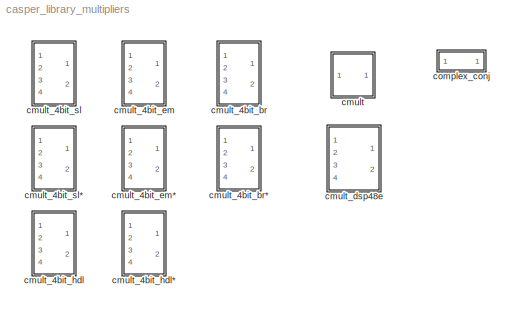
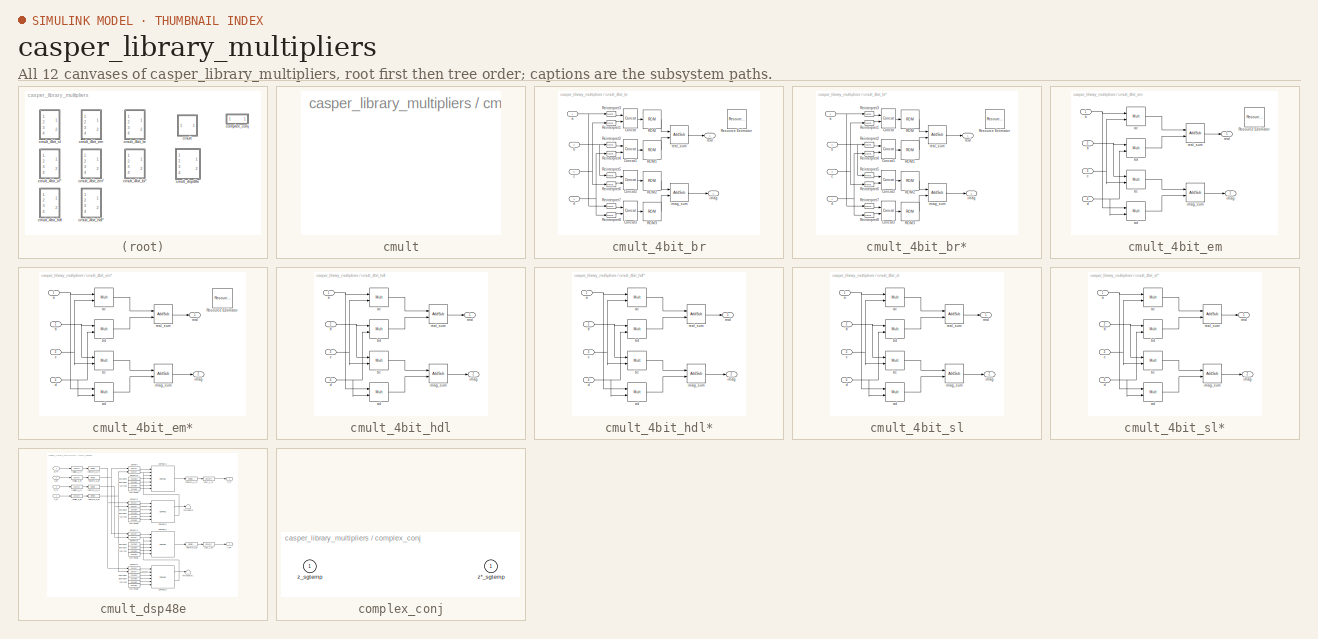
[diagram: thumbnail index - all 12 canvases of the model, root first then tree order]
MODEL casper_library_multipliers
KIND library
BLOCK [SubSystem] cmult
  FunctionWithSeparateData = off
  MaskCallbackString = |||||||||||||||
  MaskDescription = Multiplies two complex numbers using 4 multipliers and 2 adders.\nConjugation is optional.
  MaskEnableString = on,on,on,on,on,on,on,on,on,on,on,on,on,on,on,on
  MaskHideContents = off
  MaskIconFrame = on
  MaskIconOpaque = on
  MaskIconRotate = none
  MaskIconUnits = autoscale
  MaskInitialization = cmult_init(gcb, ...\n    'n_bits_a',n_bits_a, ...\n    'bin_pt_a',bin_pt_a, ...\n    'n_bits_b',n_bits_b, ...\n    'bin_pt_b',bin_pt_b, ...\n    'n_bits_ab',n_bits_ab, ...\n    'bin_pt_ab',bin_pt_ab, ...\n    'quantization',quantization, ...\n    'overflow', overflow, ...\n    'in_latency', in_latency, ...\n    'mult_latency', mult_latency, ...\n    'add_latency', add_latency, ...\n    'conv_laten...<+191ch>
  MaskPromptString = Number of Bits 'a'|Binary Point 'a'|Number of Bits 'b'|Binary Point 'b'|Number of Bits 'ab'|Binary Point 'ab'|Quantization|Overflow|Input latency|Multiplier Latency|Adder Latency|Convert latency|Conjugate|asynchronous operation|enable pipeline|Multiplier implementation
  MaskSelfModifiable = on
  MaskStyleString = edit,edit,edit,edit,edit,edit,popup(Truncate|Round  (unbiased: +/- Inf)|Round  (unbiased: Even Values)),popup(Wrap|Saturate|Flag as error),edit,edit,edit,edit,checkbox,checkbox,checkbox,popup(behavioral HDL|standard core|embedded multiplier core)
  MaskTabNameString = basic,basic,basic,basic,basic,basic,basic,basic,latency,latency,latency,latency,basic,basic,basic,implementation
  MaskToolTipString = on,on,on,on,on,on,on,on,on,on,on,on,on,on,on,on
  MaskTunableValueString = on,on,on,on,on,on,on,on,on,on,on,on,on,on,on,on
  MaskType = cmult
  MaskValueString = 0|17|18|17|37|14|Truncate|Wrap|0|3|1|1|off|off|on|behavioral HDL
  MaskVariables = n_bits_a=@1;bin_pt_a=@2;n_bits_b=@3;bin_pt_b=@4;n_bits_ab=@5;bin_pt_ab=@6;quantization=&7;overflow=&8;in_latency=@9;mult_latency=@10;add_latency=@11;conv_latency=@12;conjugated=&13;async=&14;pipelined_enable=&15;multiplier_implementation=&16;
  MaskVisibilityString = on,on,on,on,on,on,on,on,on,on,on,on,on,on,on,on
  MinAlgLoopOccurrences = off
  Opaque = off
  Ports = []
  PropExecContextOutsideSubsystem = off
  RTWSystemCode = Auto
  UserData = DataTag0
  UserDataPersistent = on
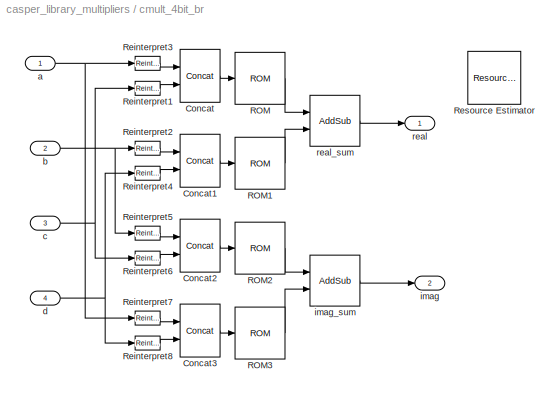
BLOCK [SubSystem] cmult_4bit_br
  FunctionWithSeparateData = off
  MaskCallbackString = |
  MaskDescription = Perform a complex multiplication (a+bi)(c-di)=(ac-bd)+(ad+bc)i. Implements the logic in Block RAM.
  MaskEnableString = on,on
  MaskHelp = eval('xlWeb(''http://casper.berkeley.edu/wiki/Cmult_4bit_br'')')
  MaskHideContents = off
  MaskIconFrame = on
  MaskIconOpaque = on
  MaskIconRotate = none
  MaskIconUnits = autoscale
  MaskPromptString = Mult Latency|Add Latency
  MaskStyleString = edit,edit
  MaskToolTipString = on,on
  MaskTunableValueString = on,on
  MaskType = cmult_4bit_br
  MaskValueString = 1|0
  MaskVariables = mult_latency=@1;add_latency=@2;
  MaskVisibilityString = on,on
  MinAlgLoopOccurrences = off
  Opaque = off
  Ports = [4, 2]
  PropExecContextOutsideSubsystem = off
  RTWSystemCode = Auto
BLOCK [SubSystem] cmult_4bit_br*
  FunctionWithSeparateData = off
  MaskCallbackString = |
  MaskDescription = Perform a conjugating complex multiplication (a+bi)(c-di)=(ac+bd)+(bc-ad)i. Implements the logic in Block RAM.
  MaskEnableString = on,on
  MaskHelp = eval('xlWeb(''http://casper.berkeley.edu/wiki/Cmult_4bit_br_'')')
  MaskHideContents = off
  MaskIconFrame = on
  MaskIconOpaque = on
  MaskIconRotate = none
  MaskIconUnits = autoscale
  MaskPromptString = Mult Latency|Add Latency
  MaskStyleString = edit,edit
  MaskToolTipString = on,on
  MaskTunableValueString = on,on
  MaskType = cmult_4bit_br*
  MaskValueString = 1|0
  MaskVariables = mult_latency=@1;add_latency=@2;
  MaskVisibilityString = on,on
  MinAlgLoopOccurrences = off
  Opaque = off
  Ports = [4, 2]
  PropExecContextOutsideSubsystem = off
  RTWSystemCode = Auto
BLOCK [Reference] cmult_4bit_br*/Concat  REF=xbsIndex_r4/Concat
  Ports = [2, 1]
  SourceBlock = xbsIndex_r4/Concat
  SourceType = Xilinx Bus Concatenator Block
  block_type = concat
  block_version = 9.1.01
  dbl_ovrd = off
  has_advanced_control = 0
  infoedit = Concatenates two or more inputs.  Output will be cast to an unsigned value with the binary point at zero.
  num_inputs = 2
  sg_icon_stat = 40,53,2,1,white,blue,0,16398980,right,,[ ],[ ]
  sg_mask_display = fprintf('','COMMENT: begin icon graphics');\npatch([0 40 40 0 0 ],[0 0 53 53 0 ],[0.77 0.82 0.91 ]);\nplot([0 40 40 0 0 ],[0 0 53 53 0 ]);\npatch([8.875 16.1 21.1 26.1 31.1 21.1 13.875 8.875 ],[31.55 31.55 36.55 31.55 36.55 36.55 36.55 31.55 ],[1 1 1 ]);\npatch([13.875 21.1 16.1 8.875 13.875 ],[26.55 26.55 31.55 31.55 26.55 ],[0.931 0.946 0.973 ]);\npatch([8.875 16.1 21.1 13.875 8.875 ],[21.55 21....<+422ch>  <repeated x8 — deduplicated; at blocks: Concat, Concat1, Concat2, Concat3>
  sggui_pos = -1,-1,-1,-1
BLOCK [Reference] cmult_4bit_br*/Concat1  REF=xbsIndex_r4/Concat
  Ports = [2, 1]
  SourceBlock = xbsIndex_r4/Concat
  SourceType = Xilinx Bus Concatenator Block
  block_type = concat
  block_version = 9.1.01
  dbl_ovrd = off
  has_advanced_control = 0
  infoedit = Concatenates two or more inputs.  Output will be cast to an unsigned value with the binary point at zero.
  num_inputs = 2
  sg_icon_stat = 40,53,2,1,white,blue,0,16398980,right,,[ ],[ ]
  sggui_pos = -1,-1,-1,-1
BLOCK [Reference] cmult_4bit_br*/Concat2  REF=xbsIndex_r4/Concat
  Ports = [2, 1]
  SourceBlock = xbsIndex_r4/Concat
  SourceType = Xilinx Bus Concatenator Block
  block_type = concat
  block_version = 9.1.01
  dbl_ovrd = off
  has_advanced_control = 0
  infoedit = Concatenates two or more inputs.  Output will be cast to an unsigned value with the binary point at zero.
  num_inputs = 2
  sg_icon_stat = 40,53,2,1,white,blue,0,16398980,right,,[ ],[ ]
  sggui_pos = -1,-1,-1,-1
BLOCK [Reference] cmult_4bit_br*/Concat3  REF=xbsIndex_r4/Concat
  Ports = [2, 1]
  SourceBlock = xbsIndex_r4/Concat
  SourceType = Xilinx Bus Concatenator Block
  block_type = concat
  block_version = 9.1.01
  dbl_ovrd = off
  has_advanced_control = 0
  infoedit = Concatenates two or more inputs.  Output will be cast to an unsigned value with the binary point at zero.
  num_inputs = 2
  sg_icon_stat = 40,53,2,1,white,blue,0,16398980,right,,[ ],[ ]
  sggui_pos = -1,-1,-1,-1
BLOCK [Reference] cmult_4bit_br*/ROM  REF=xbsIndex_r4/ROM
  Ports = [1, 1]
  SourceBlock = xbsIndex_r4/ROM
  SourceType = Xilinx Single Port Read-Only Memory Block
  arith_type = Signed  (2's comp)
  bin_pt = 6
  block_type = sprom
  block_version = 9.1.01
  dbl_ovrd = off
  depth = 256
  distributed_mem = Block RAM
  en = off
  exp_width = 8
  frac_width = 24
  gui_display_data_type = Fixed-point
  has_advanced_control = 0
  initVector = transpose(transpose([0:7 -8:-1]) * [0:7 -8:-1]) / 64
  init_reg = 0
  latency = mult_latency
  n_bits = 8
  optimize = Area
  preci_type = Single
  rst = off
  sg_icon_stat = 50,52,1,1,white,blue,0,bbc23d60,right,,[ ],[ ]
  sg_mask_display = fprintf('','COMMENT: begin icon graphics');\npatch([0 60 60 0 0 ],[0 0 56 56 0 ],[0.77 0.82 0.91 ]);\nplot([0 60 60 0 0 ],[0 0 56 56 0 ]);\npatch([12.2 23.76 31.76 39.76 47.76 31.76 20.2 12.2 ],[36.88 36.88 44.88 36.88 44.88 44.88 44.88 36.88 ],[1 1 1 ]);\npatch([20.2 31.76 23.76 12.2 20.2 ],[28.88 28.88 36.88 36.88 28.88 ],[0.931 0.946 0.973 ]);\npatch([12.2 23.76 31.76 20.2 12.2 ],[20.88 20.88 2...<+364ch>  <repeated x8 — deduplicated; at blocks: ROM, ROM1, ROM2, ROM3>
  sggui_pos = -1,-1,-1,-1
  use_rpm = off
  xl_area = [0 0 1 0 0 0 0]
  xl_use_area = off
BLOCK [Reference] cmult_4bit_br*/ROM1  REF=xbsIndex_r4/ROM
  Ports = [1, 1]
  SourceBlock = xbsIndex_r4/ROM
  SourceType = Xilinx Single Port Read-Only Memory Block
  arith_type = Signed  (2's comp)
  bin_pt = 6
  block_type = sprom
  block_version = 9.1.01
  dbl_ovrd = off
  depth = 256
  distributed_mem = Block RAM
  en = off
  exp_width = 8
  frac_width = 24
  gui_display_data_type = Fixed-point
  has_advanced_control = 0
  initVector = transpose([0:7 -8:-1]) * [0:7 -8:-1] / 64
  init_reg = 0
  latency = mult_latency
  n_bits = 8
  optimize = Area
  preci_type = Single
  rst = off
  sg_icon_stat = 50,52,1,1,white,blue,0,bbc23d60,right,,[ ],[ ]
  sggui_pos = -1,-1,-1,-1
  use_rpm = off
  xl_area = [0 0 1 0 0 0 0]
  xl_use_area = off
BLOCK [Reference] cmult_4bit_br*/ROM2  REF=xbsIndex_r4/ROM
  Ports = [1, 1]
  SourceBlock = xbsIndex_r4/ROM
  SourceType = Xilinx Single Port Read-Only Memory Block
  arith_type = Signed  (2's comp)
  bin_pt = 6
  block_type = sprom
  block_version = 9.1.01
  dbl_ovrd = off
  depth = 256
  distributed_mem = Block RAM
  en = off
  exp_width = 8
  frac_width = 24
  gui_display_data_type = Fixed-point
  has_advanced_control = 0
  initVector = transpose([0:7 -8:-1]) * [0:7 -8:-1] / 64
  init_reg = 0
  latency = mult_latency
  n_bits = 8
  optimize = Area
  preci_type = Single
  rst = off
  sg_icon_stat = 50,52,1,1,white,blue,0,bbc23d60,right,,[ ],[ ]
  sggui_pos = -1,-1,-1,-1
  use_rpm = off
  xl_area = [0 0 1 0 0 0 0]
  xl_use_area = off
BLOCK [Reference] cmult_4bit_br*/ROM3  REF=xbsIndex_r4/ROM
  Ports = [1, 1]
  SourceBlock = xbsIndex_r4/ROM
  SourceType = Xilinx Single Port Read-Only Memory Block
  arith_type = Signed  (2's comp)
  bin_pt = 6
  block_type = sprom
  block_version = 9.1.01
  dbl_ovrd = off
  depth = 256
  distributed_mem = Block RAM
  en = off
  exp_width = 8
  frac_width = 24
  gui_display_data_type = Fixed-point
  has_advanced_control = 0
  initVector = transpose([0:7 -8:-1]) * [0:7 -8:-1] / 64
  init_reg = 0
  latency = mult_latency
  n_bits = 8
  optimize = Area
  preci_type = Single
  rst = off
  sg_icon_stat = 50,52,1,1,white,blue,0,bbc23d60,right,,[ ],[ ]
  sggui_pos = -1,-1,-1,-1
  use_rpm = off
  xl_area = [0 0 1 0 0 0 0]
  xl_use_area = off
BLOCK [Reference] cmult_4bit_br*/Reinterpret1  REF=xbsIndex_r4/Reinterpret
  Ports = [1, 1]
  SourceBlock = xbsIndex_r4/Reinterpret
  SourceType = Xilinx Type Reinterpreter Block
  arith_type = Unsigned
  bin_pt = 0
  block_type = reinterpret
  block_version = 9.1.01
  force_arith_type = on
  force_bin_pt = on
  has_advanced_control = 0
  infoedit = Changes signal type without altering the binary representation.   You can changed the signal between signed and unsigned, and relocate the binary point.<P><P>Hardware notes: In hardware this block costs nothing.<P><P>Example:  Suppose the input is 6 bits wide, signed, with 2 fractional bits, and the output is forced to unsigned with 0 fractional bits.  Then an input of -2.0 (1110.00 in binary 2's ...<+55ch>  <repeated x16 — deduplicated; at blocks: Reinterpret1, Reinterpret2, Reinterpret3, Reinterpret4, Reinterpret5, Reinterpret6, Reinterpret7, Reinterpret8>
  sg_icon_stat = 25,14,1,1,white,blue,0,6b04d0b0,right,,[ ],[ ]
  sg_mask_display = fprintf('','COMMENT: begin icon graphics');\npatch([0 25 25 0 0 ],[0 0 14 14 0 ],[0.77 0.82 0.91 ]);\nplot([0 25 25 0 0 ],[0 0 14 14 0 ]);\npatch([7.55 10.44 12.44 14.44 16.44 12.44 9.55 7.55 ],[9.22 9.22 11.22 9.22 11.22 11.22 11.22 9.22 ],[1 1 1 ]);\npatch([9.55 12.44 10.44 7.55 9.55 ],[7.22 7.22 9.22 9.22 7.22 ],[0.931 0.946 0.973 ]);\npatch([7.55 10.44 12.44 9.55 7.55 ],[5.22 5.22 7.22 7.22 5....<+289ch>  <repeated x16 — deduplicated; at blocks: Reinterpret1, Reinterpret2, Reinterpret3, Reinterpret4, Reinterpret5, Reinterpret6, Reinterpret7, Reinterpret8>
  sggui_pos = -1,-1,-1,-1
BLOCK [Reference] cmult_4bit_br*/Reinterpret2  REF=xbsIndex_r4/Reinterpret
  Ports = [1, 1]
  SourceBlock = xbsIndex_r4/Reinterpret
  SourceType = Xilinx Type Reinterpreter Block
  arith_type = Unsigned
  bin_pt = 0
  block_type = reinterpret
  block_version = 9.1.01
  force_arith_type = on
  force_bin_pt = on
  has_advanced_control = 0
  sg_icon_stat = 25,14,1,1,white,blue,0,6b04d0b0,right,,[ ],[ ]
  sggui_pos = -1,-1,-1,-1
BLOCK [Reference] cmult_4bit_br*/Reinterpret3  REF=xbsIndex_r4/Reinterpret
  Ports = [1, 1]
  SourceBlock = xbsIndex_r4/Reinterpret
  SourceType = Xilinx Type Reinterpreter Block
  arith_type = Unsigned
  bin_pt = 0
  block_type = reinterpret
  block_version = 9.1.01
  force_arith_type = on
  force_bin_pt = on
  has_advanced_control = 0
  sg_icon_stat = 25,14,1,1,white,blue,0,6b04d0b0,right,,[ ],[ ]
  sggui_pos = -1,-1,-1,-1
BLOCK [Reference] cmult_4bit_br*/Reinterpret4  REF=xbsIndex_r4/Reinterpret
  Ports = [1, 1]
  SourceBlock = xbsIndex_r4/Reinterpret
  SourceType = Xilinx Type Reinterpreter Block
  arith_type = Unsigned
  bin_pt = 0
  block_type = reinterpret
  block_version = 9.1.01
  force_arith_type = on
  force_bin_pt = on
  has_advanced_control = 0
  sg_icon_stat = 25,14,1,1,white,blue,0,6b04d0b0,right,,[ ],[ ]
  sggui_pos = -1,-1,-1,-1
BLOCK [Reference] cmult_4bit_br*/Reinterpret5  REF=xbsIndex_r4/Reinterpret
  Ports = [1, 1]
  SourceBlock = xbsIndex_r4/Reinterpret
  SourceType = Xilinx Type Reinterpreter Block
  arith_type = Unsigned
  bin_pt = 0
  block_type = reinterpret
  block_version = 9.1.01
  force_arith_type = on
  force_bin_pt = on
  has_advanced_control = 0
  sg_icon_stat = 25,14,1,1,white,blue,0,6b04d0b0,right,,[ ],[ ]
  sggui_pos = -1,-1,-1,-1
BLOCK [Reference] cmult_4bit_br*/Reinterpret6  REF=xbsIndex_r4/Reinterpret
  Ports = [1, 1]
  SourceBlock = xbsIndex_r4/Reinterpret
  SourceType = Xilinx Type Reinterpreter Block
  arith_type = Unsigned
  bin_pt = 0
  block_type = reinterpret
  block_version = 9.1.01
  force_arith_type = on
  force_bin_pt = on
  has_advanced_control = 0
  sg_icon_stat = 25,14,1,1,white,blue,0,6b04d0b0,right,,[ ],[ ]
  sggui_pos = -1,-1,-1,-1
BLOCK [Reference] cmult_4bit_br*/Reinterpret7  REF=xbsIndex_r4/Reinterpret
  Ports = [1, 1]
  SourceBlock = xbsIndex_r4/Reinterpret
  SourceType = Xilinx Type Reinterpreter Block
  arith_type = Unsigned
  bin_pt = 0
  block_type = reinterpret
  block_version = 9.1.01
  force_arith_type = on
  force_bin_pt = on
  has_advanced_control = 0
  sg_icon_stat = 25,14,1,1,white,blue,0,6b04d0b0,right,,[ ],[ ]
  sggui_pos = -1,-1,-1,-1
BLOCK [Reference] cmult_4bit_br*/Reinterpret8  REF=xbsIndex_r4/Reinterpret
  Ports = [1, 1]
  SourceBlock = xbsIndex_r4/Reinterpret
  SourceType = Xilinx Type Reinterpreter Block
  arith_type = Unsigned
  bin_pt = 0
  block_type = reinterpret
  block_version = 9.1.01
  force_arith_type = on
  force_bin_pt = on
  has_advanced_control = 0
  sg_icon_stat = 25,14,1,1,white,blue,0,6b04d0b0,right,,[ ],[ ]
  sggui_pos = -1,-1,-1,-1
BLOCK [Reference] cmult_4bit_br*/Resource Estimator  REF=xbsIndex_r4/Resource Estimator
  AttributesFormatString = Resource\\nEstimator
  BRAMs = 4
  EBMs = 0
  FFs = 18
  IOBs = 0
  LUTs = 16
  Ports = []
  Slices = 10
  SourceBlock = xbsIndex_r4/Resource Estimator
  SourceType = Xilinx Resource Estimator Block
  TBUFs = 0
  Tag = resEstTag
  block_type = resource_estimator
  block_version = 9.1.01
  est_options = Estimate
  has_advanced_control = 0
  mrp_directory = <path>
  sg_icon_stat = 53,53,-1,-1,blue,white,0,0,right
  sg_mask_display = fprintf('','COMMENT: begin icon graphics');\npatch([0 53 53 0 ],[0 0 53 53 ],[0.98 0.96 0.92]);\npatch([13 4 16 4 13 27 31 35 50 38 27 19 31 19 27 38 50 35 31 27 13 ],[6 15 27 39 48 48 44 48 48 36 47 39 27 15 7 18 6 6 10 6 6 ],[0.77 0.82 0.91]);\nplot([0 0 53 53 0 ],[0 53 53 0 0 ]);\nfprintf('','COMMENT: end icon graphics');\nfprintf('','COMMENT: begin icon text');\nfprintf('','COMMENT: end icon t...<+8ch>  <repeated x4 — deduplicated; at blocks: Resource Estimator>
  sggui_pos = -1,-1,-1,-1
  simulink_period = 1
  xl_estimator_area = [10 18 4 16 0 0 0]
  xl_use_estimator_area = off
BLOCK [Inport] cmult_4bit_br*/a
  IconDisplay = Port number
BLOCK [Inport] cmult_4bit_br*/b
  IconDisplay = Port number
  Port = 2
BLOCK [Inport] cmult_4bit_br*/c
  IconDisplay = Port number
  Port = 3
BLOCK [Inport] cmult_4bit_br*/d
  IconDisplay = Port number
  Port = 4
BLOCK [Outport] cmult_4bit_br*/imag
  IconDisplay = Port number
  Port = 2
BLOCK [Reference] cmult_4bit_br*/imag_sum  REF=xbsIndex_r4/AddSub
  Ports = [2, 1]
  SourceBlock = xbsIndex_r4/AddSub
  SourceType = Xilinx Adder/Subtracter Block
  arith_type = Unsigned
  bin_pt = 2
  block_type = addsub
  block_version = 9.1.01
  dbl_ovrd = off
  en = off
  has_advanced_control = 0
  hw_selection = Fabric
  latency = add_latency
  mode = Subtraction
  n_bits = 8
  overflow = Wrap
  pipelined = off
  precision = Full
  quantization = Truncate
  sg_icon_stat = 50,51,2,1,white,blue,0,32e1f85f,right,,[ ],[ ]
  sg_mask_display = fprintf('','COMMENT: begin icon graphics');\npatch([0 60 60 0 0 ],[0 0 58 58 0 ],[0.77 0.82 0.91 ]);\nplot([0 60 60 0 0 ],[0 0 58 58 0 ]);\npatch([12.2 23.76 31.76 39.76 47.76 31.76 20.2 12.2 ],[37.88 37.88 45.88 37.88 45.88 45.88 45.88 37.88 ],[1 1 1 ]);\npatch([20.2 31.76 23.76 12.2 20.2 ],[29.88 29.88 37.88 37.88 29.88 ],[0.931 0.946 0.973 ]);\npatch([12.2 23.76 31.76 20.2 12.2 ],[21.88 21.88 2...<+424ch>  <repeated x16 — deduplicated; at blocks: imag_sum, real_sum>
  sggui_pos = -1,-1,-1,-1
  use_behavioral_HDL = on
  use_carryin = off
  use_carryout = off
  use_rpm = on
  xl_area = [5 9 0 8 0 0 0]
  xl_use_area = off
BLOCK [Outport] cmult_4bit_br*/real
  IconDisplay = Port number
BLOCK [Reference] cmult_4bit_br*/real_sum  REF=xbsIndex_r4/AddSub
  Ports = [2, 1]
  SourceBlock = xbsIndex_r4/AddSub
  SourceType = Xilinx Adder/Subtracter Block
  arith_type = Unsigned
  bin_pt = 2
  block_type = addsub
  block_version = 9.1.01
  dbl_ovrd = off
  en = off
  has_advanced_control = 0
  hw_selection = Fabric
  latency = add_latency
  mode = Addition
  n_bits = 8
  overflow = Wrap
  pipelined = off
  precision = Full
  quantization = Truncate
  sg_icon_stat = 50,51,2,1,white,blue,0,e139daf6,right,,[ ],[ ]
  sggui_pos = -1,-1,-1,-1
  use_behavioral_HDL = on
  use_carryin = off
  use_carryout = off
  use_rpm = on
  xl_area = [5 9 0 8 0 0 0]
  xl_use_area = off
BLOCK [Reference] cmult_4bit_br/Concat  REF=xbsIndex_r4/Concat
  Ports = [2, 1]
  SourceBlock = xbsIndex_r4/Concat
  SourceType = Xilinx Bus Concatenator Block
  block_type = concat
  block_version = 9.1.01
  dbl_ovrd = off
  has_advanced_control = 0
  infoedit = Concatenates two or more inputs.  Output will be cast to an unsigned value with the binary point at zero.
  num_inputs = 2
  sg_icon_stat = 40,53,2,1,white,blue,0,16398980,right,,[ ],[ ]
  sggui_pos = -1,-1,-1,-1
BLOCK [Reference] cmult_4bit_br/Concat1  REF=xbsIndex_r4/Concat
  Ports = [2, 1]
  SourceBlock = xbsIndex_r4/Concat
  SourceType = Xilinx Bus Concatenator Block
  block_type = concat
  block_version = 9.1.01
  dbl_ovrd = off
  has_advanced_control = 0
  infoedit = Concatenates two or more inputs.  Output will be cast to an unsigned value with the binary point at zero.
  num_inputs = 2
  sg_icon_stat = 40,53,2,1,white,blue,0,16398980,right,,[ ],[ ]
  sggui_pos = -1,-1,-1,-1
BLOCK [Reference] cmult_4bit_br/Concat2  REF=xbsIndex_r4/Concat
  Ports = [2, 1]
  SourceBlock = xbsIndex_r4/Concat
  SourceType = Xilinx Bus Concatenator Block
  block_type = concat
  block_version = 9.1.01
  dbl_ovrd = off
  has_advanced_control = 0
  infoedit = Concatenates two or more inputs.  Output will be cast to an unsigned value with the binary point at zero.
  num_inputs = 2
  sg_icon_stat = 40,53,2,1,white,blue,0,16398980,right,,[ ],[ ]
  sggui_pos = -1,-1,-1,-1
BLOCK [Reference] cmult_4bit_br/Concat3  REF=xbsIndex_r4/Concat
  Ports = [2, 1]
  SourceBlock = xbsIndex_r4/Concat
  SourceType = Xilinx Bus Concatenator Block
  block_type = concat
  block_version = 9.1.01
  dbl_ovrd = off
  has_advanced_control = 0
  infoedit = Concatenates two or more inputs.  Output will be cast to an unsigned value with the binary point at zero.
  num_inputs = 2
  sg_icon_stat = 40,53,2,1,white,blue,0,16398980,right,,[ ],[ ]
  sggui_pos = -1,-1,-1,-1
BLOCK [Reference] cmult_4bit_br/ROM  REF=xbsIndex_r4/ROM
  Ports = [1, 1]
  SourceBlock = xbsIndex_r4/ROM
  SourceType = Xilinx Single Port Read-Only Memory Block
  arith_type = Signed  (2's comp)
  bin_pt = 6
  block_type = sprom
  block_version = 9.1.01
  dbl_ovrd = off
  depth = 256
  distributed_mem = Block RAM
  en = off
  exp_width = 8
  frac_width = 24
  gui_display_data_type = Fixed-point
  has_advanced_control = 0
  initVector = transpose(transpose([0:7 -8:-1]) * [0:7 -8:-1]) / 64
  init_reg = 0
  latency = mult_latency
  n_bits = 8
  optimize = Area
  preci_type = Single
  rst = off
  sg_icon_stat = 50,52,1,1,white,blue,0,bbc23d60,right,,[ ],[ ]
  sggui_pos = -1,-1,-1,-1
  use_rpm = off
  xl_area = [0 0 1 0 0 0 0]
  xl_use_area = off
BLOCK [Reference] cmult_4bit_br/ROM1  REF=xbsIndex_r4/ROM
  Ports = [1, 1]
  SourceBlock = xbsIndex_r4/ROM
  SourceType = Xilinx Single Port Read-Only Memory Block
  arith_type = Signed  (2's comp)
  bin_pt = 6
  block_type = sprom
  block_version = 9.1.01
  dbl_ovrd = off
  depth = 256
  distributed_mem = Block RAM
  en = off
  exp_width = 8
  frac_width = 24
  gui_display_data_type = Fixed-point
  has_advanced_control = 0
  initVector = transpose([0:7 -8:-1]) * [0:7 -8:-1] / 64
  init_reg = 0
  latency = mult_latency
  n_bits = 8
  optimize = Area
  preci_type = Single
  rst = off
  sg_icon_stat = 50,52,1,1,white,blue,0,bbc23d60,right,,[ ],[ ]
  sggui_pos = -1,-1,-1,-1
  use_rpm = off
  xl_area = [0 0 1 0 0 0 0]
  xl_use_area = off
BLOCK [Reference] cmult_4bit_br/ROM2  REF=xbsIndex_r4/ROM
  Ports = [1, 1]
  SourceBlock = xbsIndex_r4/ROM
  SourceType = Xilinx Single Port Read-Only Memory Block
  arith_type = Signed  (2's comp)
  bin_pt = 6
  block_type = sprom
  block_version = 9.1.01
  dbl_ovrd = off
  depth = 256
  distributed_mem = Block RAM
  en = off
  exp_width = 8
  frac_width = 24
  gui_display_data_type = Fixed-point
  has_advanced_control = 0
  initVector = transpose([0:7 -8:-1]) * [0:7 -8:-1] / 64
  init_reg = 0
  latency = mult_latency
  n_bits = 8
  optimize = Area
  preci_type = Single
  rst = off
  sg_icon_stat = 50,52,1,1,white,blue,0,bbc23d60,right,,[ ],[ ]
  sggui_pos = -1,-1,-1,-1
  use_rpm = off
  xl_area = [0 0 1 0 0 0 0]
  xl_use_area = off
BLOCK [Reference] cmult_4bit_br/ROM3  REF=xbsIndex_r4/ROM
  Ports = [1, 1]
  SourceBlock = xbsIndex_r4/ROM
  SourceType = Xilinx Single Port Read-Only Memory Block
  arith_type = Signed  (2's comp)
  bin_pt = 6
  block_type = sprom
  block_version = 9.1.01
  dbl_ovrd = off
  depth = 256
  distributed_mem = Block RAM
  en = off
  exp_width = 8
  frac_width = 24
  gui_display_data_type = Fixed-point
  has_advanced_control = 0
  initVector = transpose([0:7 -8:-1]) * [0:7 -8:-1] / 64
  init_reg = 0
  latency = mult_latency
  n_bits = 8
  optimize = Area
  preci_type = Single
  rst = off
  sg_icon_stat = 50,52,1,1,white,blue,0,bbc23d60,right,,[ ],[ ]
  sggui_pos = -1,-1,-1,-1
  use_rpm = off
  xl_area = [0 0 1 0 0 0 0]
  xl_use_area = off
BLOCK [Reference] cmult_4bit_br/Reinterpret1  REF=xbsIndex_r4/Reinterpret
  Ports = [1, 1]
  SourceBlock = xbsIndex_r4/Reinterpret
  SourceType = Xilinx Type Reinterpreter Block
  arith_type = Unsigned
  bin_pt = 0
  block_type = reinterpret
  block_version = 9.1.01
  force_arith_type = on
  force_bin_pt = on
  has_advanced_control = 0
  sg_icon_stat = 25,14,1,1,white,blue,0,6b04d0b0,right,,[ ],[ ]
  sggui_pos = -1,-1,-1,-1
BLOCK [Reference] cmult_4bit_br/Reinterpret2  REF=xbsIndex_r4/Reinterpret
  Ports = [1, 1]
  SourceBlock = xbsIndex_r4/Reinterpret
  SourceType = Xilinx Type Reinterpreter Block
  arith_type = Unsigned
  bin_pt = 0
  block_type = reinterpret
  block_version = 9.1.01
  force_arith_type = on
  force_bin_pt = on
  has_advanced_control = 0
  sg_icon_stat = 25,14,1,1,white,blue,0,6b04d0b0,right,,[ ],[ ]
  sggui_pos = -1,-1,-1,-1
BLOCK [Reference] cmult_4bit_br/Reinterpret3  REF=xbsIndex_r4/Reinterpret
  Ports = [1, 1]
  SourceBlock = xbsIndex_r4/Reinterpret
  SourceType = Xilinx Type Reinterpreter Block
  arith_type = Unsigned
  bin_pt = 0
  block_type = reinterpret
  block_version = 9.1.01
  force_arith_type = on
  force_bin_pt = on
  has_advanced_control = 0
  sg_icon_stat = 25,14,1,1,white,blue,0,6b04d0b0,right,,[ ],[ ]
  sggui_pos = -1,-1,-1,-1
BLOCK [Reference] cmult_4bit_br/Reinterpret4  REF=xbsIndex_r4/Reinterpret
  Ports = [1, 1]
  SourceBlock = xbsIndex_r4/Reinterpret
  SourceType = Xilinx Type Reinterpreter Block
  arith_type = Unsigned
  bin_pt = 0
  block_type = reinterpret
  block_version = 9.1.01
  force_arith_type = on
  force_bin_pt = on
  has_advanced_control = 0
  sg_icon_stat = 25,14,1,1,white,blue,0,6b04d0b0,right,,[ ],[ ]
  sggui_pos = -1,-1,-1,-1
BLOCK [Reference] cmult_4bit_br/Reinterpret5  REF=xbsIndex_r4/Reinterpret
  Ports = [1, 1]
  SourceBlock = xbsIndex_r4/Reinterpret
  SourceType = Xilinx Type Reinterpreter Block
  arith_type = Unsigned
  bin_pt = 0
  block_type = reinterpret
  block_version = 9.1.01
  force_arith_type = on
  force_bin_pt = on
  has_advanced_control = 0
  sg_icon_stat = 25,14,1,1,white,blue,0,6b04d0b0,right,,[ ],[ ]
  sggui_pos = -1,-1,-1,-1
BLOCK [Reference] cmult_4bit_br/Reinterpret6  REF=xbsIndex_r4/Reinterpret
  Ports = [1, 1]
  SourceBlock = xbsIndex_r4/Reinterpret
  SourceType = Xilinx Type Reinterpreter Block
  arith_type = Unsigned
  bin_pt = 0
  block_type = reinterpret
  block_version = 9.1.01
  force_arith_type = on
  force_bin_pt = on
  has_advanced_control = 0
  sg_icon_stat = 25,14,1,1,white,blue,0,6b04d0b0,right,,[ ],[ ]
  sggui_pos = -1,-1,-1,-1
BLOCK [Reference] cmult_4bit_br/Reinterpret7  REF=xbsIndex_r4/Reinterpret
  Ports = [1, 1]
  SourceBlock = xbsIndex_r4/Reinterpret
  SourceType = Xilinx Type Reinterpreter Block
  arith_type = Unsigned
  bin_pt = 0
  block_type = reinterpret
  block_version = 9.1.01
  force_arith_type = on
  force_bin_pt = on
  has_advanced_control = 0
  sg_icon_stat = 25,14,1,1,white,blue,0,6b04d0b0,right,,[ ],[ ]
  sggui_pos = -1,-1,-1,-1
BLOCK [Reference] cmult_4bit_br/Reinterpret8  REF=xbsIndex_r4/Reinterpret
  Ports = [1, 1]
  SourceBlock = xbsIndex_r4/Reinterpret
  SourceType = Xilinx Type Reinterpreter Block
  arith_type = Unsigned
  bin_pt = 0
  block_type = reinterpret
  block_version = 9.1.01
  force_arith_type = on
  force_bin_pt = on
  has_advanced_control = 0
  sg_icon_stat = 25,14,1,1,white,blue,0,6b04d0b0,right,,[ ],[ ]
  sggui_pos = -1,-1,-1,-1
BLOCK [Reference] cmult_4bit_br/Resource Estimator  REF=xbsIndex_r4/Resource Estimator
  AttributesFormatString = Resource\\nEstimator
  BRAMs = 4
  EBMs = 0
  FFs = 18
  IOBs = 0
  LUTs = 16
  Ports = []
  Slices = 10
  SourceBlock = xbsIndex_r4/Resource Estimator
  SourceType = Xilinx Resource Estimator Block
  TBUFs = 0
  Tag = resEstTag
  block_type = resource_estimator
  block_version = 9.1.01
  est_options = Estimate
  has_advanced_control = 0
  mrp_directory = <path>
  sg_icon_stat = 53,53,-1,-1,blue,white,0,0,right
  sggui_pos = -1,-1,-1,-1
  simulink_period = 1
  xl_estimator_area = [10 18 4 16 0 0 0]
  xl_use_estimator_area = off
BLOCK [Inport] cmult_4bit_br/a
  IconDisplay = Port number
BLOCK [Inport] cmult_4bit_br/b
  IconDisplay = Port number
  Port = 2
BLOCK [Inport] cmult_4bit_br/c
  IconDisplay = Port number
  Port = 3
BLOCK [Inport] cmult_4bit_br/d
  IconDisplay = Port number
  Port = 4
BLOCK [Outport] cmult_4bit_br/imag
  IconDisplay = Port number
  Port = 2
BLOCK [Reference] cmult_4bit_br/imag_sum  REF=xbsIndex_r4/AddSub
  Ports = [2, 1]
  SourceBlock = xbsIndex_r4/AddSub
  SourceType = Xilinx Adder/Subtracter Block
  arith_type = Unsigned
  bin_pt = 2
  block_type = addsub
  block_version = 9.1.01
  dbl_ovrd = off
  en = off
  has_advanced_control = 0
  hw_selection = Fabric
  latency = add_latency
  mode = Addition
  n_bits = 8
  overflow = Wrap
  pipelined = off
  precision = Full
  quantization = Truncate
  sg_icon_stat = 50,51,2,1,white,blue,0,e139daf6,right,,[ ],[ ]
  sggui_pos = -1,-1,-1,-1
  use_behavioral_HDL = on
  use_carryin = off
  use_carryout = off
  use_rpm = on
  xl_area = [5 9 0 8 0 0 0]
  xl_use_area = off
BLOCK [Outport] cmult_4bit_br/real
  IconDisplay = Port number
BLOCK [Reference] cmult_4bit_br/real_sum  REF=xbsIndex_r4/AddSub
  Ports = [2, 1]
  SourceBlock = xbsIndex_r4/AddSub
  SourceType = Xilinx Adder/Subtracter Block
  arith_type = Unsigned
  bin_pt = 2
  block_type = addsub
  block_version = 9.1.01
  dbl_ovrd = off
  en = off
  has_advanced_control = 0
  hw_selection = Fabric
  latency = add_latency
  mode = Subtraction
  n_bits = 8
  overflow = Wrap
  pipelined = off
  precision = Full
  quantization = Truncate
  sg_icon_stat = 50,51,2,1,white,blue,0,32e1f85f,right,,[ ],[ ]
  sggui_pos = -1,-1,-1,-1
  use_behavioral_HDL = on
  use_carryin = off
  use_carryout = off
  use_rpm = on
  xl_area = [5 9 0 8 0 0 0]
  xl_use_area = off
BLOCK [SubSystem] cmult_4bit_em
  FunctionWithSeparateData = off
  MaskCallbackString = |
  MaskDescription = Perform a complex multiplication (a+bi)(c-di)=(ac-bd)+(ad+bc)i. Implements the logic in embedded multipliers.
  MaskEnableString = on,on
  MaskHelp = eval('xlWeb(''http://casper.berkeley.edu/wiki/Cmult_4bit_em'')')
  MaskHideContents = off
  MaskIconFrame = on
  MaskIconOpaque = on
  MaskIconRotate = none
  MaskIconUnits = autoscale
  MaskPromptString = Mult Latency|Add Latency
  MaskStyleString = edit,edit
  MaskToolTipString = on,on
  MaskTunableValueString = on,on
  MaskType = cmult_4bit_em
  MaskValueString = 1|0
  MaskVariables = mult_latency=@1;add_latency=@2;
  MaskVisibilityString = on,on
  MinAlgLoopOccurrences = off
  Opaque = off
  Ports = [4, 2]
  PropExecContextOutsideSubsystem = off
  RTWSystemCode = Auto
BLOCK [SubSystem] cmult_4bit_em*
  FunctionWithSeparateData = off
  MaskCallbackString = |
  MaskDescription = Perform a conjugating complex multiplication (a+bi)(c-di)=(ac+bd)+(bc-ad)i. Implements the logic in dedicated multipliers.
  MaskEnableString = on,on
  MaskHelp = eval('xlWeb(''http://casper.berkeley.edu/wiki/Cmult_4bit_em_'')')
  MaskHideContents = off
  MaskIconFrame = on
  MaskIconOpaque = on
  MaskIconRotate = none
  MaskIconUnits = autoscale
  MaskPromptString = Mult Latency|Add Latency
  MaskStyleString = edit,edit
  MaskToolTipString = on,on
  MaskTunableValueString = on,on
  MaskType = cmult_4bit_em*
  MaskValueString = 1|0
  MaskVariables = mult_latency=@1;add_latency=@2;
  MaskVisibilityString = on,on
  MinAlgLoopOccurrences = off
  Opaque = off
  Ports = [4, 2]
  PropExecContextOutsideSubsystem = off
  RTWSystemCode = Auto
BLOCK [Reference] cmult_4bit_em*/Resource Estimator  REF=xbsIndex_r4/Resource Estimator
  AttributesFormatString = Resource\\nEstimator
  BRAMs = 0
  EBMs = 4
  FFs = 18
  IOBs = 0
  LUTs = 48
  Ports = []
  Slices = 26
  SourceBlock = xbsIndex_r4/Resource Estimator
  SourceType = Xilinx Resource Estimator Block
  TBUFs = 0
  Tag = resEstTag
  block_type = resource_estimator
  block_version = 9.1.01
  est_options = Estimate
  has_advanced_control = 0
  mrp_directory = <path>
  sg_icon_stat = 53,53,-1,-1,blue,white,0,0,right
  sggui_pos = -1,-1,-1,-1
  simulink_period = 1
  xl_estimator_area = [26 18 0 48 0 4 0]
  xl_use_estimator_area = off
BLOCK [Inport] cmult_4bit_em*/a
  IconDisplay = Port number
BLOCK [Reference] cmult_4bit_em*/ac  REF=xbsIndex_r4/Mult
  Ports = [2, 1]
  SourceBlock = xbsIndex_r4/Mult
  SourceType = Xilinx Multiplier Block
  arith_type = Signed  (2's comp)
  bin_pt = 2
  block_type = mult
  block_version = 9.1.01
  dbl_ovrd = off
  en = off
  has_advanced_control = 0
  infoedit = Hardware notes: To use the internal pipeline stage of the dedicated multiplier you must select 'Pipeline for maximum performance'.
  latency = mult_latency
  n_bits = 8
  opt = Speed
  optimum_pipeline = off
  overflow = Wrap
  pipeline = on
  placement_style = Rectangular shape
  precision = Full
  quantization = Truncate
  sg_icon_stat = 50,51,2,1,white,blue,0,82c891c1,right,,[ ],[ ]
  sg_mask_display = fprintf('','COMMENT: begin icon graphics');\npatch([0 55 55 0 0 ],[0 0 55 55 0 ],[0.77 0.82 0.91 ]);\nplot([0 55 55 0 0 ],[0 0 55 55 0 ]);\npatch([11.425 21.54 28.54 35.54 42.54 28.54 18.425 11.425 ],[34.77 34.77 41.77 34.77 41.77 41.77 41.77 34.77 ],[1 1 1 ]);\npatch([18.425 28.54 21.54 11.425 18.425 ],[27.77 27.77 34.77 34.77 27.77 ],[0.931 0.946 0.973 ]);\npatch([11.425 21.54 28.54 18.425 11.42...<+540ch>  <repeated x24 — deduplicated; at blocks: ac, ad, bc, bd>
  sggui_pos = -1,-1,-1,-1
  use_behavioral_HDL = off
  use_embedded = on
  use_rpm = on
  xl_area = [4 0 0 8 0 1 0]
  xl_use_area = off
BLOCK [Reference] cmult_4bit_em*/ad  REF=xbsIndex_r4/Mult
  Ports = [2, 1]
  SourceBlock = xbsIndex_r4/Mult
  SourceType = Xilinx Multiplier Block
  arith_type = Signed  (2's comp)
  bin_pt = 2
  block_type = mult
  block_version = 9.1.01
  dbl_ovrd = off
  en = off
  has_advanced_control = 0
  infoedit = Hardware notes: To use the internal pipeline stage of the dedicated multiplier you must select 'Pipeline for maximum performance'.
  latency = mult_latency
  n_bits = 8
  opt = Speed
  optimum_pipeline = off
  overflow = Wrap
  pipeline = on
  placement_style = Rectangular shape
  precision = Full
  quantization = Truncate
  sg_icon_stat = 50,51,2,1,white,blue,0,82c891c1,right,,[ ],[ ]
  sggui_pos = -1,-1,-1,-1
  use_behavioral_HDL = off
  use_embedded = on
  use_rpm = on
  xl_area = [4 0 0 8 0 1 0]
  xl_use_area = off
BLOCK [Inport] cmult_4bit_em*/b
  IconDisplay = Port number
  Port = 2
BLOCK [Reference] cmult_4bit_em*/bc  REF=xbsIndex_r4/Mult
  Ports = [2, 1]
  SourceBlock = xbsIndex_r4/Mult
  SourceType = Xilinx Multiplier Block
  arith_type = Signed  (2's comp)
  bin_pt = 2
  block_type = mult
  block_version = 9.1.01
  dbl_ovrd = off
  en = off
  has_advanced_control = 0
  infoedit = Hardware notes: To use the internal pipeline stage of the dedicated multiplier you must select 'Pipeline for maximum performance'.
  latency = mult_latency
  n_bits = 8
  opt = Speed
  optimum_pipeline = off
  overflow = Wrap
  pipeline = on
  placement_style = Rectangular shape
  precision = Full
  quantization = Truncate
  sg_icon_stat = 50,51,2,1,white,blue,0,82c891c1,right,,[ ],[ ]
  sggui_pos = -1,-1,-1,-1
  use_behavioral_HDL = off
  use_embedded = on
  use_rpm = on
  xl_area = [4 0 0 8 0 1 0]
  xl_use_area = off
BLOCK [Reference] cmult_4bit_em*/bd  REF=xbsIndex_r4/Mult
  Ports = [2, 1]
  SourceBlock = xbsIndex_r4/Mult
  SourceType = Xilinx Multiplier Block
  arith_type = Signed  (2's comp)
  bin_pt = 2
  block_type = mult
  block_version = 9.1.01
  dbl_ovrd = off
  en = off
  has_advanced_control = 0
  infoedit = Hardware notes: To use the internal pipeline stage of the dedicated multiplier you must select 'Pipeline for maximum performance'.
  latency = mult_latency
  n_bits = 8
  opt = Speed
  optimum_pipeline = off
  overflow = Wrap
  pipeline = on
  placement_style = Rectangular shape
  precision = Full
  quantization = Truncate
  sg_icon_stat = 50,51,2,1,white,blue,0,82c891c1,right,,[ ],[ ]
  sggui_pos = -1,-1,-1,-1
  use_behavioral_HDL = off
  use_embedded = on
  use_rpm = on
  xl_area = [4 0 0 8 0 1 0]
  xl_use_area = off
BLOCK [Inport] cmult_4bit_em*/c
  IconDisplay = Port number
  Port = 3
BLOCK [Inport] cmult_4bit_em*/d
  IconDisplay = Port number
  Port = 4
BLOCK [Outport] cmult_4bit_em*/imag
  IconDisplay = Port number
  Port = 2
BLOCK [Reference] cmult_4bit_em*/imag_sum  REF=xbsIndex_r4/AddSub
  Ports = [2, 1]
  SourceBlock = xbsIndex_r4/AddSub
  SourceType = Xilinx Adder/Subtracter Block
  arith_type = Unsigned
  bin_pt = 2
  block_type = addsub
  block_version = 9.1.01
  dbl_ovrd = off
  en = off
  has_advanced_control = 0
  hw_selection = Fabric
  latency = add_latency
  mode = Subtraction
  n_bits = 8
  overflow = Wrap
  pipelined = off
  precision = Full
  quantization = Truncate
  sg_icon_stat = 50,51,2,1,white,blue,0,32e1f85f,right,,[ ],[ ]
  sggui_pos = -1,-1,-1,-1
  use_behavioral_HDL = on
  use_carryin = off
  use_carryout = off
  use_rpm = on
  xl_area = [5 9 0 8 0 0 0]
  xl_use_area = off
BLOCK [Outport] cmult_4bit_em*/real
  IconDisplay = Port number
BLOCK [Reference] cmult_4bit_em*/real_sum  REF=xbsIndex_r4/AddSub
  Ports = [2, 1]
  SourceBlock = xbsIndex_r4/AddSub
  SourceType = Xilinx Adder/Subtracter Block
  arith_type = Unsigned
  bin_pt = 2
  block_type = addsub
  block_version = 9.1.01
  dbl_ovrd = off
  en = off
  has_advanced_control = 0
  hw_selection = Fabric
  latency = add_latency
  mode = Addition
  n_bits = 8
  overflow = Wrap
  pipelined = off
  precision = Full
  quantization = Truncate
  sg_icon_stat = 50,51,2,1,white,blue,0,e139daf6,right,,[ ],[ ]
  sggui_pos = -1,-1,-1,-1
  use_behavioral_HDL = on
  use_carryin = off
  use_carryout = off
  use_rpm = on
  xl_area = [5 9 0 8 0 0 0]
  xl_use_area = off
BLOCK [Reference] cmult_4bit_em/Resource Estimator  REF=xbsIndex_r4/Resource Estimator
  AttributesFormatString = Resource\\nEstimator
  BRAMs = 0
  EBMs = 4
  FFs = 18
  IOBs = 0
  LUTs = 48
  Ports = []
  Slices = 26
  SourceBlock = xbsIndex_r4/Resource Estimator
  SourceType = Xilinx Resource Estimator Block
  TBUFs = 0
  Tag = resEstTag
  block_type = resource_estimator
  block_version = 9.1.01
  est_options = Estimate
  has_advanced_control = 0
  mrp_directory = <path>
  sg_icon_stat = 53,53,-1,-1,blue,white,0,0,right
  sggui_pos = -1,-1,-1,-1
  simulink_period = 1
  xl_estimator_area = [26 18 0 48 0 4 0]
  xl_use_estimator_area = off
BLOCK [Inport] cmult_4bit_em/a
  IconDisplay = Port number
BLOCK [Reference] cmult_4bit_em/ac  REF=xbsIndex_r4/Mult
  Ports = [2, 1]
  SourceBlock = xbsIndex_r4/Mult
  SourceType = Xilinx Multiplier Block
  arith_type = Signed  (2's comp)
  bin_pt = 2
  block_type = mult
  block_version = 9.1.01
  dbl_ovrd = off
  en = off
  has_advanced_control = 0
  infoedit = Hardware notes: To use the internal pipeline stage of the dedicated multiplier you must select 'Pipeline for maximum performance'.
  latency = mult_latency
  n_bits = 8
  opt = Speed
  optimum_pipeline = off
  overflow = Wrap
  pipeline = on
  placement_style = Rectangular shape
  precision = Full
  quantization = Truncate
  sg_icon_stat = 50,51,2,1,white,blue,0,82c891c1,right,,[ ],[ ]
  sggui_pos = -1,-1,-1,-1
  use_behavioral_HDL = off
  use_embedded = on
  use_rpm = on
  xl_area = [4 0 0 8 0 1 0]
  xl_use_area = off
BLOCK [Reference] cmult_4bit_em/ad  REF=xbsIndex_r4/Mult
  Ports = [2, 1]
  SourceBlock = xbsIndex_r4/Mult
  SourceType = Xilinx Multiplier Block
  arith_type = Signed  (2's comp)
  bin_pt = 2
  block_type = mult
  block_version = 9.1.01
  dbl_ovrd = off
  en = off
  has_advanced_control = 0
  infoedit = Hardware notes: To use the internal pipeline stage of the dedicated multiplier you must select 'Pipeline for maximum performance'.
  latency = mult_latency
  n_bits = 8
  opt = Speed
  optimum_pipeline = off
  overflow = Wrap
  pipeline = on
  placement_style = Rectangular shape
  precision = Full
  quantization = Truncate
  sg_icon_stat = 50,51,2,1,white,blue,0,82c891c1,right,,[ ],[ ]
  sggui_pos = -1,-1,-1,-1
  use_behavioral_HDL = off
  use_embedded = on
  use_rpm = on
  xl_area = [4 0 0 8 0 1 0]
  xl_use_area = off
BLOCK [Inport] cmult_4bit_em/b
  IconDisplay = Port number
  Port = 2
BLOCK [Reference] cmult_4bit_em/bc  REF=xbsIndex_r4/Mult
  Ports = [2, 1]
  SourceBlock = xbsIndex_r4/Mult
  SourceType = Xilinx Multiplier Block
  arith_type = Signed  (2's comp)
  bin_pt = 2
  block_type = mult
  block_version = 9.1.01
  dbl_ovrd = off
  en = off
  has_advanced_control = 0
  infoedit = Hardware notes: To use the internal pipeline stage of the dedicated multiplier you must select 'Pipeline for maximum performance'.
  latency = mult_latency
  n_bits = 8
  opt = Speed
  optimum_pipeline = off
  overflow = Wrap
  pipeline = on
  placement_style = Rectangular shape
  precision = Full
  quantization = Truncate
  sg_icon_stat = 50,51,2,1,white,blue,0,82c891c1,right,,[ ],[ ]
  sggui_pos = -1,-1,-1,-1
  use_behavioral_HDL = off
  use_embedded = on
  use_rpm = on
  xl_area = [4 0 0 8 0 1 0]
  xl_use_area = off
BLOCK [Reference] cmult_4bit_em/bd  REF=xbsIndex_r4/Mult
  Ports = [2, 1]
  SourceBlock = xbsIndex_r4/Mult
  SourceType = Xilinx Multiplier Block
  arith_type = Signed  (2's comp)
  bin_pt = 2
  block_type = mult
  block_version = 9.1.01
  dbl_ovrd = off
  en = off
  has_advanced_control = 0
  infoedit = Hardware notes: To use the internal pipeline stage of the dedicated multiplier you must select 'Pipeline for maximum performance'.
  latency = mult_latency
  n_bits = 8
  opt = Speed
  optimum_pipeline = off
  overflow = Wrap
  pipeline = on
  placement_style = Rectangular shape
  precision = Full
  quantization = Truncate
  sg_icon_stat = 50,51,2,1,white,blue,0,82c891c1,right,,[ ],[ ]
  sggui_pos = -1,-1,-1,-1
  use_behavioral_HDL = off
  use_embedded = on
  use_rpm = on
  xl_area = [4 0 0 8 0 1 0]
  xl_use_area = off
BLOCK [Inport] cmult_4bit_em/c
  IconDisplay = Port number
  Port = 3
BLOCK [Inport] cmult_4bit_em/d
  IconDisplay = Port number
  Port = 4
BLOCK [Outport] cmult_4bit_em/imag
  IconDisplay = Port number
  Port = 2
BLOCK [Reference] cmult_4bit_em/imag_sum  REF=xbsIndex_r4/AddSub
  Ports = [2, 1]
  SourceBlock = xbsIndex_r4/AddSub
  SourceType = Xilinx Adder/Subtracter Block
  arith_type = Unsigned
  bin_pt = 2
  block_type = addsub
  block_version = 9.1.01
  dbl_ovrd = off
  en = off
  has_advanced_control = 0
  hw_selection = Fabric
  latency = add_latency
  mode = Addition
  n_bits = 8
  overflow = Wrap
  pipelined = off
  precision = Full
  quantization = Truncate
  sg_icon_stat = 50,51,2,1,white,blue,0,e139daf6,right,,[ ],[ ]
  sggui_pos = -1,-1,-1,-1
  use_behavioral_HDL = on
  use_carryin = off
  use_carryout = off
  use_rpm = on
  xl_area = [5 9 0 8 0 0 0]
  xl_use_area = off
BLOCK [Outport] cmult_4bit_em/real
  IconDisplay = Port number
BLOCK [Reference] cmult_4bit_em/real_sum  REF=xbsIndex_r4/AddSub
  Ports = [2, 1]
  SourceBlock = xbsIndex_r4/AddSub
  SourceType = Xilinx Adder/Subtracter Block
  arith_type = Unsigned
  bin_pt = 2
  block_type = addsub
  block_version = 9.1.01
  dbl_ovrd = off
  en = off
  has_advanced_control = 0
  hw_selection = Fabric
  latency = add_latency
  mode = Subtraction
  n_bits = 8
  overflow = Wrap
  pipelined = off
  precision = Full
  quantization = Truncate
  sg_icon_stat = 50,51,2,1,white,blue,0,32e1f85f,right,,[ ],[ ]
  sggui_pos = -1,-1,-1,-1
  use_behavioral_HDL = on
  use_carryin = off
  use_carryout = off
  use_rpm = on
  xl_area = [5 9 0 8 0 0 0]
  xl_use_area = off
BLOCK [SubSystem] cmult_4bit_hdl
  FunctionWithSeparateData = off
  MaskCallbackString = |
  MaskDescription = Perform a complex multiplication (a+bi)(c-di)=(ac-bd)+(ad+bc)i. Implements the logic in Slices.
  MaskEnableString = on,on
  MaskHelp = eval('xlWeb(''http://casper.berkeley.edu/wiki/Cmult_4bit_sl'')')
  MaskHideContents = off
  MaskIconFrame = on
  MaskIconOpaque = on
  MaskIconRotate = none
  MaskIconUnits = autoscale
  MaskPromptString = Mult Latency|Add Latency
  MaskStyleString = edit,edit
  MaskToolTipString = on,on
  MaskTunableValueString = on,on
  MaskType = cmult_4bit_sl
  MaskValueString = 1|0
  MaskVariables = mult_latency=@1;add_latency=@2;
  MaskVisibilityString = on,on
  MinAlgLoopOccurrences = off
  Opaque = off
  Ports = [4, 2]
  PropExecContextOutsideSubsystem = off
  RTWSystemCode = Auto
BLOCK [SubSystem] cmult_4bit_hdl*
  FunctionWithSeparateData = off
  MaskCallbackString = |
  MaskDescription = Perform a conjugating complex multiplication (a+bi)(c-di)=(ac+bd)+(bc-ad)i. Implements the logic in Slices.
  MaskEnableString = on,on
  MaskHelp = eval('xlWeb(''http://casper.berkeley.edu/wiki/Cmult_4bit_sl_'')')
  MaskHideContents = off
  MaskIconFrame = on
  MaskIconOpaque = on
  MaskIconRotate = none
  MaskIconUnits = autoscale
  MaskPromptString = Mult Latency|Add Latency
  MaskStyleString = edit,edit
  MaskToolTipString = on,on
  MaskTunableValueString = on,on
  MaskType = cmult_4bit_sl*
  MaskValueString = 1|0
  MaskVariables = mult_latency=@1;add_latency=@2;
  MaskVisibilityString = on,on
  MinAlgLoopOccurrences = off
  Opaque = off
  Ports = [4, 2]
  PropExecContextOutsideSubsystem = off
  RTWSystemCode = Auto
BLOCK [Inport] cmult_4bit_hdl*/a
  IconDisplay = Port number
BLOCK [Reference] cmult_4bit_hdl*/ac  REF=xbsIndex_r4/Mult
  Ports = [2, 1]
  SourceBlock = xbsIndex_r4/Mult
  SourceType = Xilinx Multiplier Block
  arith_type = Signed  (2's comp)
  bin_pt = 6
  block_type = mult
  block_version = 9.1.01
  dbl_ovrd = off
  en = off
  has_advanced_control = 0
  infoedit = Hardware notes: To use the internal pipeline stage of the dedicated multiplier you must select 'Pipeline for maximum performance'.
  latency = mult_latency
  n_bits = 7
  opt = Speed
  optimum_pipeline = off
  overflow = Wrap
  pipeline = off
  placement_style = Rectangular shape
  precision = Full
  quantization = Truncate
  sg_icon_stat = 50,51,2,1,white,blue,0,82c891c1,right,,[ ],[ ]
  sggui_pos = 20,20,348,434
  use_behavioral_HDL = on
  use_embedded = off
  use_rpm = on
  xl_area = [10 7 0 17 0 0 0]
  xl_use_area = off
BLOCK [Reference] cmult_4bit_hdl*/ad  REF=xbsIndex_r4/Mult
  Ports = [2, 1]
  SourceBlock = xbsIndex_r4/Mult
  SourceType = Xilinx Multiplier Block
  arith_type = Signed  (2's comp)
  bin_pt = 6
  block_type = mult
  block_version = 9.1.01
  dbl_ovrd = off
  en = off
  has_advanced_control = 0
  infoedit = Hardware notes: To use the internal pipeline stage of the dedicated multiplier you must select 'Pipeline for maximum performance'.
  latency = mult_latency
  n_bits = 7
  opt = Speed
  optimum_pipeline = off
  overflow = Wrap
  pipeline = off
  placement_style = Rectangular shape
  precision = Full
  quantization = Truncate
  sg_icon_stat = 50,51,2,1,white,blue,0,82c891c1,right,,[ ],[ ]
  sggui_pos = 20,20,348,434
  use_behavioral_HDL = on
  use_embedded = off
  use_rpm = on
  xl_area = [10 7 0 17 0 0 0]
  xl_use_area = off
BLOCK [Inport] cmult_4bit_hdl*/b
  IconDisplay = Port number
  Port = 2
BLOCK [Reference] cmult_4bit_hdl*/bc  REF=xbsIndex_r4/Mult
  Ports = [2, 1]
  SourceBlock = xbsIndex_r4/Mult
  SourceType = Xilinx Multiplier Block
  arith_type = Signed  (2's comp)
  bin_pt = 6
  block_type = mult
  block_version = 9.1.01
  dbl_ovrd = off
  en = off
  has_advanced_control = 0
  infoedit = Hardware notes: To use the internal pipeline stage of the dedicated multiplier you must select 'Pipeline for maximum performance'.
  latency = mult_latency
  n_bits = 7
  opt = Speed
  optimum_pipeline = off
  overflow = Wrap
  pipeline = off
  placement_style = Rectangular shape
  precision = Full
  quantization = Truncate
  sg_icon_stat = 50,51,2,1,white,blue,0,82c891c1,right,,[ ],[ ]
  sggui_pos = 20,20,348,434
  use_behavioral_HDL = on
  use_embedded = off
  use_rpm = on
  xl_area = [10 7 0 17 0 0 0]
  xl_use_area = off
BLOCK [Reference] cmult_4bit_hdl*/bd  REF=xbsIndex_r4/Mult
  Ports = [2, 1]
  SourceBlock = xbsIndex_r4/Mult
  SourceType = Xilinx Multiplier Block
  arith_type = Signed  (2's comp)
  bin_pt = 6
  block_type = mult
  block_version = 9.1.01
  dbl_ovrd = off
  en = off
  has_advanced_control = 0
  infoedit = Hardware notes: To use the internal pipeline stage of the dedicated multiplier you must select 'Pipeline for maximum performance'.
  latency = mult_latency
  n_bits = 7
  opt = Speed
  optimum_pipeline = off
  overflow = Wrap
  pipeline = off
  placement_style = Rectangular shape
  precision = Full
  quantization = Truncate
  sg_icon_stat = 50,51,2,1,white,blue,0,82c891c1,right,,[ ],[ ]
  sggui_pos = 20,20,348,434
  use_behavioral_HDL = on
  use_embedded = off
  use_rpm = on
  xl_area = [10 7 0 17 0 0 0]
  xl_use_area = off
BLOCK [Inport] cmult_4bit_hdl*/c
  IconDisplay = Port number
  Port = 3
BLOCK [Inport] cmult_4bit_hdl*/d
  IconDisplay = Port number
  Port = 4
BLOCK [Outport] cmult_4bit_hdl*/imag
  IconDisplay = Port number
  Port = 2
BLOCK [Reference] cmult_4bit_hdl*/imag_sum  REF=xbsIndex_r4/AddSub
  Ports = [2, 1]
  SourceBlock = xbsIndex_r4/AddSub
  SourceType = Xilinx Adder/Subtracter Block
  arith_type = Unsigned
  bin_pt = 2
  block_type = addsub
  block_version = 9.1.01
  dbl_ovrd = off
  en = off
  has_advanced_control = 0
  hw_selection = Fabric
  latency = add_latency
  mode = Subtraction
  n_bits = 8
  overflow = Wrap
  pipelined = off
  precision = Full
  quantization = Truncate
  sg_icon_stat = 50,51,2,1,white,blue,0,32e1f85f,right,,[ ],[ ]
  sggui_pos = -1,-1,-1,-1
  use_behavioral_HDL = on
  use_carryin = off
  use_carryout = off
  use_rpm = on
  xl_area = [4 8 0 7 0 0 0]
  xl_use_area = off
BLOCK [Outport] cmult_4bit_hdl*/real
  IconDisplay = Port number
BLOCK [Reference] cmult_4bit_hdl*/real_sum  REF=xbsIndex_r4/AddSub
  Ports = [2, 1]
  SourceBlock = xbsIndex_r4/AddSub
  SourceType = Xilinx Adder/Subtracter Block
  arith_type = Unsigned
  bin_pt = 2
  block_type = addsub
  block_version = 9.1.01
  dbl_ovrd = off
  en = off
  has_advanced_control = 0
  hw_selection = Fabric
  latency = add_latency
  mode = Addition
  n_bits = 8
  overflow = Wrap
  pipelined = off
  precision = Full
  quantization = Truncate
  sg_icon_stat = 50,51,2,1,white,blue,0,e139daf6,right,,[ ],[ ]
  sggui_pos = -1,-1,-1,-1
  use_behavioral_HDL = on
  use_carryin = off
  use_carryout = off
  use_rpm = on
  xl_area = [4 8 0 7 0 0 0]
  xl_use_area = off
BLOCK [Inport] cmult_4bit_hdl/a
  IconDisplay = Port number
BLOCK [Reference] cmult_4bit_hdl/ac  REF=xbsIndex_r4/Mult
  Ports = [2, 1]
  SourceBlock = xbsIndex_r4/Mult
  SourceType = Xilinx Multiplier Block
  arith_type = Signed  (2's comp)
  bin_pt = 6
  block_type = mult
  block_version = 9.1.01
  dbl_ovrd = off
  en = off
  has_advanced_control = 0
  infoedit = Hardware notes: To use the internal pipeline stage of the dedicated multiplier you must select 'Pipeline for maximum performance'.
  latency = mult_latency
  n_bits = 7
  opt = Speed
  optimum_pipeline = off
  overflow = Wrap
  pipeline = off
  placement_style = Rectangular shape
  precision = Full
  quantization = Truncate
  sg_icon_stat = 50,51,2,1,white,blue,0,82c891c1,right,,[ ],[ ]
  sggui_pos = 20,20,348,434
  use_behavioral_HDL = on
  use_embedded = off
  use_rpm = on
  xl_area = [10 7 0 17 0 0 0]
  xl_use_area = off
BLOCK [Reference] cmult_4bit_hdl/ad  REF=xbsIndex_r4/Mult
  Ports = [2, 1]
  SourceBlock = xbsIndex_r4/Mult
  SourceType = Xilinx Multiplier Block
  arith_type = Signed  (2's comp)
  bin_pt = 6
  block_type = mult
  block_version = 9.1.01
  dbl_ovrd = off
  en = off
  has_advanced_control = 0
  infoedit = Hardware notes: To use the internal pipeline stage of the dedicated multiplier you must select 'Pipeline for maximum performance'.
  latency = mult_latency
  n_bits = 7
  opt = Speed
  optimum_pipeline = off
  overflow = Wrap
  pipeline = off
  placement_style = Rectangular shape
  precision = Full
  quantization = Truncate
  sg_icon_stat = 50,51,2,1,white,blue,0,82c891c1,right,,[ ],[ ]
  sggui_pos = 20,20,348,434
  use_behavioral_HDL = on
  use_embedded = off
  use_rpm = on
  xl_area = [10 7 0 17 0 0 0]
  xl_use_area = off
BLOCK [Inport] cmult_4bit_hdl/b
  IconDisplay = Port number
  Port = 2
BLOCK [Reference] cmult_4bit_hdl/bc  REF=xbsIndex_r4/Mult
  Ports = [2, 1]
  SourceBlock = xbsIndex_r4/Mult
  SourceType = Xilinx Multiplier Block
  arith_type = Signed  (2's comp)
  bin_pt = 6
  block_type = mult
  block_version = 9.1.01
  dbl_ovrd = off
  en = off
  has_advanced_control = 0
  infoedit = Hardware notes: To use the internal pipeline stage of the dedicated multiplier you must select 'Pipeline for maximum performance'.
  latency = mult_latency
  n_bits = 7
  opt = Speed
  optimum_pipeline = off
  overflow = Wrap
  pipeline = off
  placement_style = Rectangular shape
  precision = Full
  quantization = Truncate
  sg_icon_stat = 50,51,2,1,white,blue,0,82c891c1,right,,[ ],[ ]
  sggui_pos = 20,20,348,434
  use_behavioral_HDL = on
  use_embedded = off
  use_rpm = on
  xl_area = [10 7 0 17 0 0 0]
  xl_use_area = off
BLOCK [Reference] cmult_4bit_hdl/bd  REF=xbsIndex_r4/Mult
  Ports = [2, 1]
  SourceBlock = xbsIndex_r4/Mult
  SourceType = Xilinx Multiplier Block
  arith_type = Signed  (2's comp)
  bin_pt = 6
  block_type = mult
  block_version = 9.1.01
  dbl_ovrd = off
  en = off
  has_advanced_control = 0
  infoedit = Hardware notes: To use the internal pipeline stage of the dedicated multiplier you must select 'Pipeline for maximum performance'.
  latency = mult_latency
  n_bits = 7
  opt = Speed
  optimum_pipeline = off
  overflow = Wrap
  pipeline = off
  placement_style = Rectangular shape
  precision = Full
  quantization = Truncate
  sg_icon_stat = 50,51,2,1,white,blue,0,82c891c1,right,,[ ],[ ]
  sggui_pos = 20,20,348,434
  use_behavioral_HDL = on
  use_embedded = off
  use_rpm = on
  xl_area = [10 7 0 17 0 0 0]
  xl_use_area = off
BLOCK [Inport] cmult_4bit_hdl/c
  IconDisplay = Port number
  Port = 3
BLOCK [Inport] cmult_4bit_hdl/d
  IconDisplay = Port number
  Port = 4
BLOCK [Outport] cmult_4bit_hdl/imag
  IconDisplay = Port number
  Port = 2
BLOCK [Reference] cmult_4bit_hdl/imag_sum  REF=xbsIndex_r4/AddSub
  Ports = [2, 1]
  SourceBlock = xbsIndex_r4/AddSub
  SourceType = Xilinx Adder/Subtracter Block
  arith_type = Unsigned
  bin_pt = 2
  block_type = addsub
  block_version = 9.1.01
  dbl_ovrd = off
  en = off
  has_advanced_control = 0
  hw_selection = Fabric
  latency = add_latency
  mode = Addition
  n_bits = 8
  overflow = Wrap
  pipelined = off
  precision = Full
  quantization = Truncate
  sg_icon_stat = 50,51,2,1,white,blue,0,e139daf6,right,,[ ],[ ]
  sggui_pos = 20,20,407,344
  use_behavioral_HDL = on
  use_carryin = off
  use_carryout = off
  use_rpm = on
  xl_area = [4 8 0 7 0 0 0]
  xl_use_area = off
BLOCK [Outport] cmult_4bit_hdl/real
  IconDisplay = Port number
BLOCK [Reference] cmult_4bit_hdl/real_sum  REF=xbsIndex_r4/AddSub
  Ports = [2, 1]
  SourceBlock = xbsIndex_r4/AddSub
  SourceType = Xilinx Adder/Subtracter Block
  arith_type = Unsigned
  bin_pt = 2
  block_type = addsub
  block_version = 9.1.01
  dbl_ovrd = off
  en = off
  has_advanced_control = 0
  hw_selection = Fabric
  latency = add_latency
  mode = Subtraction
  n_bits = 8
  overflow = Wrap
  pipelined = off
  precision = Full
  quantization = Truncate
  sg_icon_stat = 50,51,2,1,white,blue,0,32e1f85f,right,,[ ],[ ]
  sggui_pos = 20,20,407,344
  use_behavioral_HDL = on
  use_carryin = off
  use_carryout = off
  use_rpm = on
  xl_area = [4 8 0 7 0 0 0]
  xl_use_area = off
BLOCK [SubSystem] cmult_4bit_sl
  FunctionWithSeparateData = off
  MaskCallbackString = |
  MaskDescription = Perform a complex multiplication (a+bi)(c-di)=(ac-bd)+(ad+bc)i. Implements the logic in Slices.
  MaskEnableString = on,on
  MaskHelp = eval('xlWeb(''http://casper.berkeley.edu/wiki/Cmult_4bit_sl'')')
  MaskHideContents = off
  MaskIconFrame = on
  MaskIconOpaque = on
  MaskIconRotate = none
  MaskIconUnits = autoscale
  MaskPromptString = Mult Latency|Add Latency
  MaskStyleString = edit,edit
  MaskToolTipString = on,on
  MaskTunableValueString = on,on
  MaskType = cmult_4bit_sl
  MaskValueString = 1|0
  MaskVariables = mult_latency=@1;add_latency=@2;
  MaskVisibilityString = on,on
  MinAlgLoopOccurrences = off
  Opaque = off
  Ports = [4, 2]
  PropExecContextOutsideSubsystem = off
  RTWSystemCode = Auto
BLOCK [SubSystem] cmult_4bit_sl*
  FunctionWithSeparateData = off
  MaskCallbackString = |
  MaskDescription = Perform a conjugating complex multiplication (a+bi)(c-di)=(ac+bd)+(bc-ad)i. Implements the logic in Slices.
  MaskEnableString = on,on
  MaskHelp = eval('xlWeb(''http://casper.berkeley.edu/wiki/Cmult_4bit_sl_'')')
  MaskHideContents = off
  MaskIconFrame = on
  MaskIconOpaque = on
  MaskIconRotate = none
  MaskIconUnits = autoscale
  MaskPromptString = Mult Latency|Add Latency
  MaskStyleString = edit,edit
  MaskToolTipString = on,on
  MaskTunableValueString = on,on
  MaskType = cmult_4bit_sl*
  MaskValueString = 1|0
  MaskVariables = mult_latency=@1;add_latency=@2;
  MaskVisibilityString = on,on
  MinAlgLoopOccurrences = off
  Opaque = off
  Ports = [4, 2]
  PropExecContextOutsideSubsystem = off
  RTWSystemCode = Auto
BLOCK [Inport] cmult_4bit_sl*/a
  IconDisplay = Port number
BLOCK [Reference] cmult_4bit_sl*/ac  REF=xbsIndex_r4/Mult
  Ports = [2, 1]
  SourceBlock = xbsIndex_r4/Mult
  SourceType = Xilinx Multiplier Block
  arith_type = Signed  (2's comp)
  bin_pt = 6
  block_type = mult
  block_version = 9.1.01
  dbl_ovrd = off
  en = off
  has_advanced_control = 0
  infoedit = Hardware notes: To use the internal pipeline stage of the dedicated multiplier you must select 'Pipeline for maximum performance'.
  latency = mult_latency
  n_bits = 7
  opt = Speed
  optimum_pipeline = off
  overflow = Wrap
  pipeline = off
  placement_style = Rectangular shape
  precision = Full
  quantization = Truncate
  sg_icon_stat = 50,51,2,1,white,blue,0,82c891c1,right,,[ ],[ ]
  sggui_pos = -1,-1,-1,-1
  use_behavioral_HDL = off
  use_embedded = off
  use_rpm = on
  xl_area = [10 7 0 17 0 0 0]
  xl_use_area = off
BLOCK [Reference] cmult_4bit_sl*/ad  REF=xbsIndex_r4/Mult
  Ports = [2, 1]
  SourceBlock = xbsIndex_r4/Mult
  SourceType = Xilinx Multiplier Block
  arith_type = Signed  (2's comp)
  bin_pt = 6
  block_type = mult
  block_version = 9.1.01
  dbl_ovrd = off
  en = off
  has_advanced_control = 0
  infoedit = Hardware notes: To use the internal pipeline stage of the dedicated multiplier you must select 'Pipeline for maximum performance'.
  latency = mult_latency
  n_bits = 7
  opt = Speed
  optimum_pipeline = off
  overflow = Wrap
  pipeline = off
  placement_style = Rectangular shape
  precision = Full
  quantization = Truncate
  sg_icon_stat = 50,51,2,1,white,blue,0,82c891c1,right,,[ ],[ ]
  sggui_pos = -1,-1,-1,-1
  use_behavioral_HDL = off
  use_embedded = off
  use_rpm = on
  xl_area = [10 7 0 17 0 0 0]
  xl_use_area = off
BLOCK [Inport] cmult_4bit_sl*/b
  IconDisplay = Port number
  Port = 2
BLOCK [Reference] cmult_4bit_sl*/bc  REF=xbsIndex_r4/Mult
  Ports = [2, 1]
  SourceBlock = xbsIndex_r4/Mult
  SourceType = Xilinx Multiplier Block
  arith_type = Signed  (2's comp)
  bin_pt = 6
  block_type = mult
  block_version = 9.1.01
  dbl_ovrd = off
  en = off
  has_advanced_control = 0
  infoedit = Hardware notes: To use the internal pipeline stage of the dedicated multiplier you must select 'Pipeline for maximum performance'.
  latency = mult_latency
  n_bits = 7
  opt = Speed
  optimum_pipeline = off
  overflow = Wrap
  pipeline = off
  placement_style = Rectangular shape
  precision = Full
  quantization = Truncate
  sg_icon_stat = 50,51,2,1,white,blue,0,82c891c1,right,,[ ],[ ]
  sggui_pos = -1,-1,-1,-1
  use_behavioral_HDL = off
  use_embedded = off
  use_rpm = on
  xl_area = [10 7 0 17 0 0 0]
  xl_use_area = off
BLOCK [Reference] cmult_4bit_sl*/bd  REF=xbsIndex_r4/Mult
  Ports = [2, 1]
  SourceBlock = xbsIndex_r4/Mult
  SourceType = Xilinx Multiplier Block
  arith_type = Signed  (2's comp)
  bin_pt = 6
  block_type = mult
  block_version = 9.1.01
  dbl_ovrd = off
  en = off
  has_advanced_control = 0
  infoedit = Hardware notes: To use the internal pipeline stage of the dedicated multiplier you must select 'Pipeline for maximum performance'.
  latency = mult_latency
  n_bits = 7
  opt = Speed
  optimum_pipeline = off
  overflow = Wrap
  pipeline = off
  placement_style = Rectangular shape
  precision = Full
  quantization = Truncate
  sg_icon_stat = 50,51,2,1,white,blue,0,82c891c1,right,,[ ],[ ]
  sggui_pos = -1,-1,-1,-1
  use_behavioral_HDL = off
  use_embedded = off
  use_rpm = on
  xl_area = [10 7 0 17 0 0 0]
  xl_use_area = off
BLOCK [Inport] cmult_4bit_sl*/c
  IconDisplay = Port number
  Port = 3
BLOCK [Inport] cmult_4bit_sl*/d
  IconDisplay = Port number
  Port = 4
BLOCK [Outport] cmult_4bit_sl*/imag
  IconDisplay = Port number
  Port = 2
BLOCK [Reference] cmult_4bit_sl*/imag_sum  REF=xbsIndex_r4/AddSub
  Ports = [2, 1]
  SourceBlock = xbsIndex_r4/AddSub
  SourceType = Xilinx Adder/Subtracter Block
  arith_type = Unsigned
  bin_pt = 2
  block_type = addsub
  block_version = 9.1.01
  dbl_ovrd = off
  en = off
  has_advanced_control = 0
  hw_selection = Fabric
  latency = add_latency
  mode = Subtraction
  n_bits = 8
  overflow = Wrap
  pipelined = off
  precision = Full
  quantization = Truncate
  sg_icon_stat = 50,51,2,1,white,blue,0,32e1f85f,right,,[ ],[ ]
  sggui_pos = -1,-1,-1,-1
  use_behavioral_HDL = on
  use_carryin = off
  use_carryout = off
  use_rpm = on
  xl_area = [4 8 0 7 0 0 0]
  xl_use_area = off
BLOCK [Outport] cmult_4bit_sl*/real
  IconDisplay = Port number
BLOCK [Reference] cmult_4bit_sl*/real_sum  REF=xbsIndex_r4/AddSub
  Ports = [2, 1]
  SourceBlock = xbsIndex_r4/AddSub
  SourceType = Xilinx Adder/Subtracter Block
  arith_type = Unsigned
  bin_pt = 2
  block_type = addsub
  block_version = 9.1.01
  dbl_ovrd = off
  en = off
  has_advanced_control = 0
  hw_selection = Fabric
  latency = add_latency
  mode = Addition
  n_bits = 8
  overflow = Wrap
  pipelined = off
  precision = Full
  quantization = Truncate
  sg_icon_stat = 50,51,2,1,white,blue,0,e139daf6,right,,[ ],[ ]
  sggui_pos = -1,-1,-1,-1
  use_behavioral_HDL = on
  use_carryin = off
  use_carryout = off
  use_rpm = on
  xl_area = [4 8 0 7 0 0 0]
  xl_use_area = off
BLOCK [Inport] cmult_4bit_sl/a
  IconDisplay = Port number
BLOCK [Reference] cmult_4bit_sl/ac  REF=xbsIndex_r4/Mult
  Ports = [2, 1]
  SourceBlock = xbsIndex_r4/Mult
  SourceType = Xilinx Multiplier Block
  arith_type = Signed  (2's comp)
  bin_pt = 6
  block_type = mult
  block_version = 9.1.01
  dbl_ovrd = off
  en = off
  has_advanced_control = 0
  infoedit = Hardware notes: To use the internal pipeline stage of the dedicated multiplier you must select 'Pipeline for maximum performance'.
  latency = mult_latency
  n_bits = 7
  opt = Speed
  optimum_pipeline = off
  overflow = Wrap
  pipeline = off
  placement_style = Rectangular shape
  precision = Full
  quantization = Truncate
  sg_icon_stat = 50,51,2,1,white,blue,0,82c891c1,right,,[ ],[ ]
  sggui_pos = -1,-1,-1,-1
  use_behavioral_HDL = off
  use_embedded = off
  use_rpm = on
  xl_area = [10 7 0 17 0 0 0]
  xl_use_area = off
BLOCK [Reference] cmult_4bit_sl/ad  REF=xbsIndex_r4/Mult
  Ports = [2, 1]
  SourceBlock = xbsIndex_r4/Mult
  SourceType = Xilinx Multiplier Block
  arith_type = Signed  (2's comp)
  bin_pt = 6
  block_type = mult
  block_version = 9.1.01
  dbl_ovrd = off
  en = off
  has_advanced_control = 0
  infoedit = Hardware notes: To use the internal pipeline stage of the dedicated multiplier you must select 'Pipeline for maximum performance'.
  latency = mult_latency
  n_bits = 7
  opt = Speed
  optimum_pipeline = off
  overflow = Wrap
  pipeline = off
  placement_style = Rectangular shape
  precision = Full
  quantization = Truncate
  sg_icon_stat = 50,51,2,1,white,blue,0,82c891c1,right,,[ ],[ ]
  sggui_pos = -1,-1,-1,-1
  use_behavioral_HDL = off
  use_embedded = off
  use_rpm = on
  xl_area = [10 7 0 17 0 0 0]
  xl_use_area = off
BLOCK [Inport] cmult_4bit_sl/b
  IconDisplay = Port number
  Port = 2
BLOCK [Reference] cmult_4bit_sl/bc  REF=xbsIndex_r4/Mult
  Ports = [2, 1]
  SourceBlock = xbsIndex_r4/Mult
  SourceType = Xilinx Multiplier Block
  arith_type = Signed  (2's comp)
  bin_pt = 6
  block_type = mult
  block_version = 9.1.01
  dbl_ovrd = off
  en = off
  has_advanced_control = 0
  infoedit = Hardware notes: To use the internal pipeline stage of the dedicated multiplier you must select 'Pipeline for maximum performance'.
  latency = mult_latency
  n_bits = 7
  opt = Speed
  optimum_pipeline = off
  overflow = Wrap
  pipeline = off
  placement_style = Rectangular shape
  precision = Full
  quantization = Truncate
  sg_icon_stat = 50,51,2,1,white,blue,0,82c891c1,right,,[ ],[ ]
  sggui_pos = -1,-1,-1,-1
  use_behavioral_HDL = off
  use_embedded = off
  use_rpm = on
  xl_area = [10 7 0 17 0 0 0]
  xl_use_area = off
BLOCK [Reference] cmult_4bit_sl/bd  REF=xbsIndex_r4/Mult
  Ports = [2, 1]
  SourceBlock = xbsIndex_r4/Mult
  SourceType = Xilinx Multiplier Block
  arith_type = Signed  (2's comp)
  bin_pt = 6
  block_type = mult
  block_version = 9.1.01
  dbl_ovrd = off
  en = off
  has_advanced_control = 0
  infoedit = Hardware notes: To use the internal pipeline stage of the dedicated multiplier you must select 'Pipeline for maximum performance'.
  latency = mult_latency
  n_bits = 7
  opt = Speed
  optimum_pipeline = off
  overflow = Wrap
  pipeline = off
  placement_style = Rectangular shape
  precision = Full
  quantization = Truncate
  sg_icon_stat = 50,51,2,1,white,blue,0,82c891c1,right,,[ ],[ ]
  sggui_pos = -1,-1,-1,-1
  use_behavioral_HDL = off
  use_embedded = off
  use_rpm = on
  xl_area = [10 7 0 17 0 0 0]
  xl_use_area = off
BLOCK [Inport] cmult_4bit_sl/c
  IconDisplay = Port number
  Port = 3
BLOCK [Inport] cmult_4bit_sl/d
  IconDisplay = Port number
  Port = 4
BLOCK [Outport] cmult_4bit_sl/imag
  IconDisplay = Port number
  Port = 2
BLOCK [Reference] cmult_4bit_sl/imag_sum  REF=xbsIndex_r4/AddSub
  Ports = [2, 1]
  SourceBlock = xbsIndex_r4/AddSub
  SourceType = Xilinx Adder/Subtracter Block
  arith_type = Unsigned
  bin_pt = 2
  block_type = addsub
  block_version = 9.1.01
  dbl_ovrd = off
  en = off
  has_advanced_control = 0
  hw_selection = Fabric
  latency = add_latency
  mode = Addition
  n_bits = 8
  overflow = Wrap
  pipelined = off
  precision = Full
  quantization = Truncate
  sg_icon_stat = 50,51,2,1,white,blue,0,e139daf6,right,,[ ],[ ]
  sggui_pos = 20,20,407,344
  use_behavioral_HDL = on
  use_carryin = off
  use_carryout = off
  use_rpm = on
  xl_area = [4 8 0 7 0 0 0]
  xl_use_area = off
BLOCK [Outport] cmult_4bit_sl/real
  IconDisplay = Port number
BLOCK [Reference] cmult_4bit_sl/real_sum  REF=xbsIndex_r4/AddSub
  Ports = [2, 1]
  SourceBlock = xbsIndex_r4/AddSub
  SourceType = Xilinx Adder/Subtracter Block
  arith_type = Unsigned
  bin_pt = 2
  block_type = addsub
  block_version = 9.1.01
  dbl_ovrd = off
  en = off
  has_advanced_control = 0
  hw_selection = Fabric
  latency = add_latency
  mode = Subtraction
  n_bits = 8
  overflow = Wrap
  pipelined = off
  precision = Full
  quantization = Truncate
  sg_icon_stat = 50,51,2,1,white,blue,0,32e1f85f,right,,[ ],[ ]
  sggui_pos = 20,20,407,344
  use_behavioral_HDL = on
  use_carryin = off
  use_carryout = off
  use_rpm = on
  xl_area = [4 8 0 7 0 0 0]
  xl_use_area = off
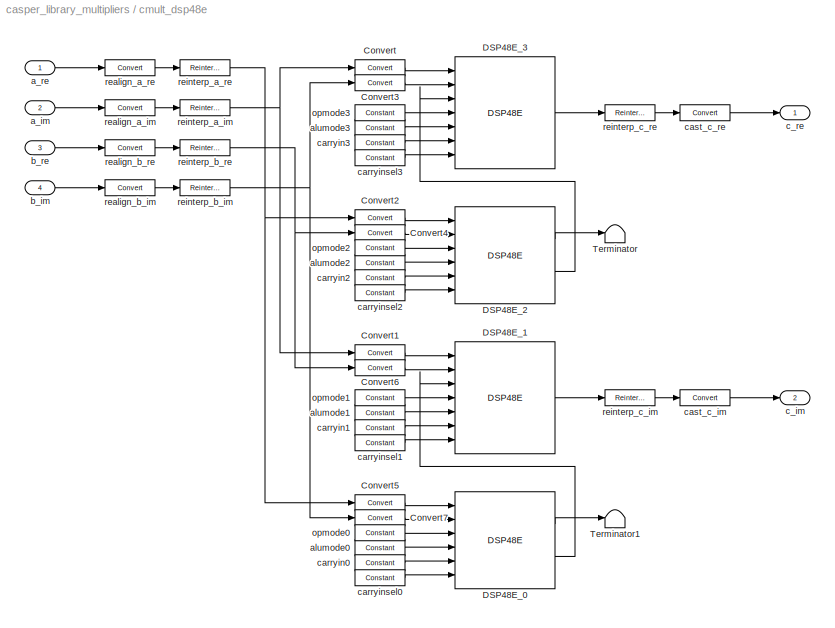
BLOCK [SubSystem] cmult_dsp48e
  AttributesFormatString = 18_17 * 18_17 ==> 37_34\nLatency=4
  FunctionWithSeparateData = off
  MaskCallbackString = |||||full_precision = get_param(gcb, 'full_precision');\n\nif strcmp(full_precision, 'on'),\n    not_full_precision = 'off';\nelse\n    not_full_precision = 'on';\nend\n\nset_param_state(gcb, 'n_bits_c', not_full_precision);\nset_param_state(gcb, 'bin_pt_c', not_full_precision);\nset_param_state(gcb, 'quantization', not_full_precision);\nset_param_state(gcb, 'overflow', not_full_precision);\nset_p...<+57ch>
  MaskDescription = Multiplies two complex numbers using 4 DSP48Es.\nConjugation is optional.\n\nRe{a} and Im{a} can be up to 25 bits.\nRe{b} and Im{b} can be up to 18 bits.
  MaskEnableString = on,on,on,on,on,on,off,off,off,off,off
  MaskHideContents = off
  MaskIconFrame = on
  MaskIconOpaque = on
  MaskIconRotate = none
  MaskIconUnits = autoscale
  MaskInitialization = cmult_dsp48e_init(gcb, ...\n    'n_bits_a', n_bits_a, ...\n    'bin_pt_a', bin_pt_a, ...\n    'n_bits_b', n_bits_b, ...\n    'bin_pt_b', bin_pt_b, ...\n    'conjugated', conjugated, ...\n    'full_precision', full_precision, ...\n    'n_bits_c', n_bits_c, ...\n    'bin_pt_c', bin_pt_c, ...\n    'quantization', quantization, ...\n    'overflow', overflow, ...\n    'cast_latency', cast_latency);
  MaskPromptString = Bit width 'a'|Binary point 'a'|Bit width 'b'|Binary point 'b'|Conjugate|Full precision|Bit width out|Binary point out|Quantization|Overflow|Cast Latency
  MaskSelfModifiable = on
  MaskStyleString = edit,edit,edit,edit,checkbox,checkbox,edit,edit,popup(Truncate|Round  (unbiased: +/- Inf)|Round  (unbiased: Even Values)),popup(Wrap|Saturate|Flag as error),edit
  MaskTabNameString = Basic,Basic,Basic,Basic,Basic,Output Type,Output Type,Output Type,Output Type,Output Type,Output Type
  MaskToolTipString = on,on,on,on,on,on,on,on,on,on,on
  MaskTunableValueString = on,on,on,on,on,on,on,on,on,on,on
  MaskType = cmult_dsp48e
  MaskValueString = 18|17|18|17|off|on|37|34|Truncate|Wrap|0
  MaskVariables = n_bits_a=@1;bin_pt_a=@2;n_bits_b=@3;bin_pt_b=@4;conjugated=&5;full_precision=&6;n_bits_c=@7;bin_pt_c=@8;quantization=&9;overflow=&10;cast_latency=@11;
  MaskVisibilityString = on,on,on,on,on,on,on,on,on,on,on
  MinAlgLoopOccurrences = off
  Opaque = off
  Ports = [4, 2]
  PropExecContextOutsideSubsystem = off
  RTWSystemCode = Auto
  UserData = DataTag1
  UserDataPersistent = on
BLOCK [Reference] cmult_dsp48e/Convert  REF=xbsIndex_r4/Convert
  Ports = [1, 1]
  SourceBlock = xbsIndex_r4/Convert
  SourceType = Xilinx Type Converter Block
  arith_type = Signed  (2's comp)
  bin_pt = 0
  block_type = convert
  block_version = 10.1.3
  dbl_ovrd = off
  en = off
  exp_bits = 8
  float_type = Single
  fraction_bits = 24
  gui_display_data_type = Fixed-point
  has_advanced_control = 0
  infoedit = Hardware notes: rounding and saturating require hardware resources; truncating and wrapping do not.
  latency = 0
  n_bits = 30
  overflow = Wrap
  pipeline = on
  quantization = Truncate
  sg_icon_stat = 50,16,1,1,white,blue,0,edca21da,right,,[ ],[ ]
  sg_mask_display = fprintf('','COMMENT: begin icon graphics');\npatch([0 50 50 0 0 ],[0 0 16 16 0 ],[0.77 0.82 0.91 ]);\nplot([0 50 50 0 0 ],[0 0 16 16 0 ]);\npatch([20.55 23.44 25.44 27.44 29.44 25.44 22.55 20.55 ],[10.22 10.22 12.22 10.22 12.22 12.22 12.22 10.22 ],[1 1 1 ]);\npatch([22.55 25.44 23.44 20.55 22.55 ],[8.22 8.22 10.22 10.22 8.22 ],[0.931 0.946 0.973 ]);\npatch([20.55 23.44 25.44 22.55 20.55 ],[6.22 6....<+315ch>
  sggui_pos = 20,27,633,525
  xl_area = [0,0,0,0,0,0,0]
  xl_use_area = off
BLOCK [Reference] cmult_dsp48e/Convert1  REF=xbsIndex_r4/Convert
  Ports = [1, 1]
  SourceBlock = xbsIndex_r4/Convert
  SourceType = Xilinx Type Converter Block
  arith_type = Signed  (2's comp)
  bin_pt = 0
  block_type = convert
  block_version = 10.1.3
  dbl_ovrd = off
  en = off
  exp_bits = 8
  float_type = Single
  fraction_bits = 24
  gui_display_data_type = Fixed-point
  has_advanced_control = 0
  infoedit = Hardware notes: rounding and saturating require hardware resources; truncating and wrapping do not.
  latency = 0
  n_bits = 30
  overflow = Wrap
  pipeline = on
  quantization = Truncate
  sg_icon_stat = 50,16,1,1,white,blue,0,edca21da,right,,[ ],[ ]
  sg_mask_display = fprintf('','COMMENT: begin icon graphics');\npatch([0 50 50 0 0 ],[0 0 16 16 0 ],[0.77 0.82 0.91 ]);\nplot([0 50 50 0 0 ],[0 0 16 16 0 ]);\npatch([20.55 23.44 25.44 27.44 29.44 25.44 22.55 20.55 ],[10.22 10.22 12.22 10.22 12.22 12.22 12.22 10.22 ],[1 1 1 ]);\npatch([22.55 25.44 23.44 20.55 22.55 ],[8.22 8.22 10.22 10.22 8.22 ],[0.931 0.946 0.973 ]);\npatch([20.55 23.44 25.44 22.55 20.55 ],[6.22 6....<+317ch>  <repeated x13 — deduplicated; at blocks: Convert1, Convert2, Convert3, Convert4, Convert5, Convert6, Convert7, cast_c_im, cast_c_re, realign_a_im, realign_a_re, realign_b_im, realign_b_re>
  sggui_pos = 20,27,633,525
  xl_area = [0,0,0,0,0,0,0]
  xl_use_area = off
BLOCK [Reference] cmult_dsp48e/Convert2  REF=xbsIndex_r4/Convert
  Ports = [1, 1]
  SourceBlock = xbsIndex_r4/Convert
  SourceType = Xilinx Type Converter Block
  arith_type = Signed  (2's comp)
  bin_pt = 0
  block_type = convert
  block_version = 10.1.3
  dbl_ovrd = off
  en = off
  exp_bits = 8
  float_type = Single
  fraction_bits = 24
  gui_display_data_type = Fixed-point
  has_advanced_control = 0
  infoedit = Hardware notes: rounding and saturating require hardware resources; truncating and wrapping do not.
  latency = 0
  n_bits = 30
  overflow = Wrap
  pipeline = on
  quantization = Truncate
  sg_icon_stat = 50,16,1,1,white,blue,0,edca21da,right,,[ ],[ ]
  sggui_pos = 20,27,633,525
  xl_area = [0,0,0,0,0,0,0]
  xl_use_area = off
BLOCK [Reference] cmult_dsp48e/Convert3  REF=xbsIndex_r4/Convert
  Ports = [1, 1]
  SourceBlock = xbsIndex_r4/Convert
  SourceType = Xilinx Type Converter Block
  arith_type = Signed  (2's comp)
  bin_pt = 0
  block_type = convert
  block_version = 10.1.3
  dbl_ovrd = off
  en = off
  exp_bits = 8
  float_type = Single
  fraction_bits = 24
  gui_display_data_type = Fixed-point
  has_advanced_control = 0
  infoedit = Hardware notes: rounding and saturating require hardware resources; truncating and wrapping do not.
  latency = 0
  n_bits = 18
  overflow = Wrap
  pipeline = on
  quantization = Truncate
  sg_icon_stat = 50,16,1,1,white,blue,0,edca21da,right,,[ ],[ ]
  sggui_pos = 20,27,633,525
  xl_area = [0,0,0,0,0,0,0]
  xl_use_area = off
BLOCK [Reference] cmult_dsp48e/Convert4  REF=xbsIndex_r4/Convert
  Ports = [1, 1]
  SourceBlock = xbsIndex_r4/Convert
  SourceType = Xilinx Type Converter Block
  arith_type = Signed  (2's comp)
  bin_pt = 0
  block_type = convert
  block_version = 10.1.3
  dbl_ovrd = off
  en = off
  exp_bits = 8
  float_type = Single
  fraction_bits = 24
  gui_display_data_type = Fixed-point
  has_advanced_control = 0
  infoedit = Hardware notes: rounding and saturating require hardware resources; truncating and wrapping do not.
  latency = 0
  n_bits = 18
  overflow = Wrap
  pipeline = on
  quantization = Truncate
  sg_icon_stat = 50,16,1,1,white,blue,0,edca21da,right,,[ ],[ ]
  sggui_pos = 20,27,633,525
  xl_area = [0,0,0,0,0,0,0]
  xl_use_area = off
BLOCK [Reference] cmult_dsp48e/Convert5  REF=xbsIndex_r4/Convert
  Ports = [1, 1]
  SourceBlock = xbsIndex_r4/Convert
  SourceType = Xilinx Type Converter Block
  arith_type = Signed  (2's comp)
  bin_pt = 0
  block_type = convert
  block_version = 10.1.3
  dbl_ovrd = off
  en = off
  exp_bits = 8
  float_type = Single
  fraction_bits = 24
  gui_display_data_type = Fixed-point
  has_advanced_control = 0
  infoedit = Hardware notes: rounding and saturating require hardware resources; truncating and wrapping do not.
  latency = 0
  n_bits = 30
  overflow = Wrap
  pipeline = on
  quantization = Truncate
  sg_icon_stat = 50,16,1,1,white,blue,0,edca21da,right,,[ ],[ ]
  sggui_pos = 20,27,633,525
  xl_area = [0,0,0,0,0,0,0]
  xl_use_area = off
BLOCK [Reference] cmult_dsp48e/Convert6  REF=xbsIndex_r4/Convert
  Ports = [1, 1]
  SourceBlock = xbsIndex_r4/Convert
  SourceType = Xilinx Type Converter Block
  arith_type = Signed  (2's comp)
  bin_pt = 0
  block_type = convert
  block_version = 10.1.3
  dbl_ovrd = off
  en = off
  exp_bits = 8
  float_type = Single
  fraction_bits = 24
  gui_display_data_type = Fixed-point
  has_advanced_control = 0
  infoedit = Hardware notes: rounding and saturating require hardware resources; truncating and wrapping do not.
  latency = 0
  n_bits = 18
  overflow = Wrap
  pipeline = on
  quantization = Truncate
  sg_icon_stat = 50,16,1,1,white,blue,0,edca21da,right,,[ ],[ ]
  sggui_pos = 20,27,633,525
  xl_area = [0,0,0,0,0,0,0]
  xl_use_area = off
BLOCK [Reference] cmult_dsp48e/Convert7  REF=xbsIndex_r4/Convert
  Ports = [1, 1]
  SourceBlock = xbsIndex_r4/Convert
  SourceType = Xilinx Type Converter Block
  arith_type = Signed  (2's comp)
  bin_pt = 0
  block_type = convert
  block_version = 10.1.3
  dbl_ovrd = off
  en = off
  exp_bits = 8
  float_type = Single
  fraction_bits = 24
  gui_display_data_type = Fixed-point
  has_advanced_control = 0
  infoedit = Hardware notes: rounding and saturating require hardware resources; truncating and wrapping do not.
  latency = 0
  n_bits = 18
  overflow = Wrap
  pipeline = on
  quantization = Truncate
  sg_icon_stat = 50,16,1,1,white,blue,0,edca21da,right,,[ ],[ ]
  sggui_pos = 20,27,633,525
  xl_area = [0,0,0,0,0,0,0]
  xl_use_area = off
BLOCK [Reference] cmult_dsp48e/DSP48E_0  REF=xbsIndex_r4/DSP48E
  Ports = [6, 2]
  SourceBlock = xbsIndex_r4/DSP48E
  SourceType = Xilinx DSP48E Block
  addsub_mode = ONE48
  block_type = dsp48e
  block_version = 10.1.3
  en_a1 = off
  en_a2 = off
  en_all = off
  en_alumode = off
  en_b1 = off
  en_b2 = off
  en_c = off
  en_carry_in = off
  en_ctrl = off
  en_mult = off
  en_multcarryin = off
  en_p = off
  has_advanced_control = 0
  mask_from_creg = off
  pattern = '000000000000'
  pattern_from_creg = off
  pattern_mask = '3FFFFFFFFFFF'
  pipeline_a = 1
  pipeline_acout = 1
  pipeline_alumode = on
  pipeline_b = 1
  pipeline_bcout = 1
  pipeline_c = on
  pipeline_carryin = on
  pipeline_carryinsel = on
  pipeline_mult = on
  pipeline_opmode = on
  pipeline_p = on
  reset_preg = off
  rst_a = off
  rst_all = off
  rst_alumode = off
  rst_b = off
  rst_c = off
  rst_carry_in = off
  rst_ctrl = off
  rst_mult = off
  rst_p = off
  sel_rounding_mask = Select mask
  sg_icon_stat = 100,97,6,2,white,blue,0,c3facdee,right,,[ ],[ ]
  sg_mask_display = fprintf('','COMMENT: begin icon graphics');\npatch([0 100 100 0 0 ],[0 0 97 97 0 ],[0.77 0.82 0.91 ]);\nplot([0 100 100 0 0 ],[0 0 97 97 0 ]);\npatch([21.075 39.86 52.86 65.86 78.86 52.86 34.075 21.075 ],[62.43 62.43 75.43 62.43 75.43 75.43 75.43 62.43 ],[1 1 1 ]);\npatch([34.075 52.86 39.86 21.075 34.075 ],[49.43 49.43 62.43 62.43 49.43 ],[0.931 0.946 0.973 ]);\npatch([21.075 39.86 52.86 34.075 2...<+675ch>
  sggui_pos = 0,0,658,967
  use_a = Direct from A Port
  use_acout = off
  use_b = Direct from B Port
  use_bcout = off
  use_carrycascin = off
  use_carrycascout = off
  use_carryout = off
  use_creg = off
  use_multsignin = off
  use_multsignout = off
  use_op = off
  use_overflow = off
  use_patternbdetect = off
  use_patterndetect = off
  use_pcin = off
  use_pcout = on
  use_synth_model = off
  use_underflow = off
  xl_area = [0,0,0,0,0,0,0]
  xl_use_area = off
  xl_useadderonly = off
BLOCK [Reference] cmult_dsp48e/DSP48E_1  REF=xbsIndex_r4/DSP48E
  Ports = [7, 1]
  SourceBlock = xbsIndex_r4/DSP48E
  SourceType = Xilinx DSP48E Block
  addsub_mode = ONE48
  block_type = dsp48e
  block_version = 10.1.3
  en_a1 = off
  en_a2 = off
  en_all = off
  en_alumode = off
  en_b1 = off
  en_b2 = off
  en_c = off
  en_carry_in = off
  en_ctrl = off
  en_mult = off
  en_multcarryin = off
  en_p = off
  has_advanced_control = 0
  mask_from_creg = off
  pattern = '000000000000'
  pattern_from_creg = off
  pattern_mask = '3FFFFFFFFFFF'
  pipeline_a = 2
  pipeline_acout = 1
  pipeline_alumode = on
  pipeline_b = 2
  pipeline_bcout = 1
  pipeline_c = on
  pipeline_carryin = on
  pipeline_carryinsel = on
  pipeline_mult = on
  pipeline_opmode = on
  pipeline_p = on
  reset_preg = off
  rst_a = off
  rst_all = off
  rst_alumode = off
  rst_b = off
  rst_c = off
  rst_carry_in = off
  rst_ctrl = off
  rst_mult = off
  rst_p = off
  sel_rounding_mask = Select mask
  sg_icon_stat = 100,112,7,1,white,blue,0,b41431cb,right,,[ ],[ ]
  sg_mask_display = fprintf('','COMMENT: begin icon graphics');\npatch([0 100 100 0 0 ],[0 0 112 112 0 ],[0.77 0.82 0.91 ]);\nplot([0 100 100 0 0 ],[0 0 112 112 0 ]);\npatch([18.85 39.08 53.08 67.08 81.08 53.08 32.85 18.85 ],[71.54 71.54 85.54 71.54 85.54 85.54 85.54 71.54 ],[1 1 1 ]);\npatch([32.85 53.08 39.08 18.85 32.85 ],[57.54 57.54 71.54 71.54 57.54 ],[0.931 0.946 0.973 ]);\npatch([18.85 39.08 53.08 32.85 18.85...<+665ch>
  sggui_pos = 224,37,658,967
  use_a = Direct from A Port
  use_acout = off
  use_b = Direct from B Port
  use_bcout = off
  use_carrycascin = off
  use_carrycascout = off
  use_carryout = off
  use_creg = off
  use_multsignin = off
  use_multsignout = off
  use_op = off
  use_overflow = off
  use_patternbdetect = off
  use_patterndetect = off
  use_pcin = on
  use_pcout = off
  use_synth_model = off
  use_underflow = off
  xl_area = [0,0,0,0,0,0,0]
  xl_use_area = off
  xl_useadderonly = off
BLOCK [Reference] cmult_dsp48e/DSP48E_2  REF=xbsIndex_r4/DSP48E
  Ports = [6, 2]
  SourceBlock = xbsIndex_r4/DSP48E
  SourceType = Xilinx DSP48E Block
  addsub_mode = ONE48
  block_type = dsp48e
  block_version = 10.1.3
  en_a1 = off
  en_a2 = off
  en_all = off
  en_alumode = off
  en_b1 = off
  en_b2 = off
  en_c = off
  en_carry_in = off
  en_ctrl = off
  en_mult = off
  en_multcarryin = off
  en_p = off
  has_advanced_control = 0
  mask_from_creg = off
  pattern = '000000000000'
  pattern_from_creg = off
  pattern_mask = '3FFFFFFFFFFF'
  pipeline_a = 1
  pipeline_acout = 1
  pipeline_alumode = on
  pipeline_b = 1
  pipeline_bcout = 1
  pipeline_c = on
  pipeline_carryin = on
  pipeline_carryinsel = on
  pipeline_mult = on
  pipeline_opmode = on
  pipeline_p = on
  reset_preg = off
  rst_a = off
  rst_all = off
  rst_alumode = off
  rst_b = off
  rst_c = off
  rst_carry_in = off
  rst_ctrl = off
  rst_mult = off
  rst_p = off
  sel_rounding_mask = Select mask
  sg_icon_stat = 100,97,6,2,white,blue,0,c3facdee,right,,[ ],[ ]
  sg_mask_display = fprintf('','COMMENT: begin icon graphics');\npatch([0 100 100 0 0 ],[0 0 97 97 0 ],[0.77 0.82 0.91 ]);\nplot([0 100 100 0 0 ],[0 0 97 97 0 ]);\npatch([21.075 39.86 52.86 65.86 78.86 52.86 34.075 21.075 ],[62.43 62.43 75.43 62.43 75.43 75.43 75.43 62.43 ],[1 1 1 ]);\npatch([34.075 52.86 39.86 21.075 34.075 ],[49.43 49.43 62.43 62.43 49.43 ],[0.931 0.946 0.973 ]);\npatch([21.075 39.86 52.86 34.075 2...<+675ch>
  sggui_pos = 0,0,658,967
  use_a = Direct from A Port
  use_acout = off
  use_b = Direct from B Port
  use_bcout = off
  use_carrycascin = off
  use_carrycascout = off
  use_carryout = off
  use_creg = off
  use_multsignin = off
  use_multsignout = off
  use_op = off
  use_overflow = off
  use_patternbdetect = off
  use_patterndetect = off
  use_pcin = off
  use_pcout = on
  use_synth_model = off
  use_underflow = off
  xl_area = [0,0,0,0,0,0,0]
  xl_use_area = off
  xl_useadderonly = off
BLOCK [Reference] cmult_dsp48e/DSP48E_3  REF=xbsIndex_r4/DSP48E
  Ports = [7, 1]
  SourceBlock = xbsIndex_r4/DSP48E
  SourceType = Xilinx DSP48E Block
  addsub_mode = ONE48
  block_type = dsp48e
  block_version = 10.1.3
  en_a1 = off
  en_a2 = off
  en_all = off
  en_alumode = off
  en_b1 = off
  en_b2 = off
  en_c = off
  en_carry_in = off
  en_ctrl = off
  en_mult = off
  en_multcarryin = off
  en_p = off
  has_advanced_control = 0
  mask_from_creg = off
  pattern = '000000000000'
  pattern_from_creg = off
  pattern_mask = '3FFFFFFFFFFF'
  pipeline_a = 2
  pipeline_acout = 1
  pipeline_alumode = on
  pipeline_b = 2
  pipeline_bcout = 1
  pipeline_c = on
  pipeline_carryin = on
  pipeline_carryinsel = on
  pipeline_mult = on
  pipeline_opmode = on
  pipeline_p = on
  reset_preg = off
  rst_a = off
  rst_all = off
  rst_alumode = off
  rst_b = off
  rst_c = off
  rst_carry_in = off
  rst_ctrl = off
  rst_mult = off
  rst_p = off
  sel_rounding_mask = Select mask
  sg_icon_stat = 100,112,7,1,white,blue,0,b41431cb,right,,[ ],[ ]
  sg_mask_display = fprintf('','COMMENT: begin icon graphics');\npatch([0 100 100 0 0 ],[0 0 112 112 0 ],[0.77 0.82 0.91 ]);\nplot([0 100 100 0 0 ],[0 0 112 112 0 ]);\npatch([18.85 39.08 53.08 67.08 81.08 53.08 32.85 18.85 ],[71.54 71.54 85.54 71.54 85.54 85.54 85.54 71.54 ],[1 1 1 ]);\npatch([32.85 53.08 39.08 18.85 32.85 ],[57.54 57.54 71.54 71.54 57.54 ],[0.931 0.946 0.973 ]);\npatch([18.85 39.08 53.08 32.85 18.85...<+665ch>
  sggui_pos = 224,37,658,967
  use_a = Direct from A Port
  use_acout = off
  use_b = Direct from B Port
  use_bcout = off
  use_carrycascin = off
  use_carrycascout = off
  use_carryout = off
  use_creg = off
  use_multsignin = off
  use_multsignout = off
  use_op = off
  use_overflow = off
  use_patternbdetect = off
  use_patterndetect = off
  use_pcin = on
  use_pcout = off
  use_synth_model = off
  use_underflow = off
  xl_area = [0,0,0,0,0,0,0]
  xl_use_area = off
  xl_useadderonly = off
BLOCK [Terminator] cmult_dsp48e/Terminator
BLOCK [Terminator] cmult_dsp48e/Terminator1
BLOCK [Inport] cmult_dsp48e/a_im
  IconDisplay = Port number
  Port = 2
BLOCK [Inport] cmult_dsp48e/a_re
  IconDisplay = Port number
BLOCK [Reference] cmult_dsp48e/alumode0  REF=xbsIndex_r4/Constant
  Ports = [0, 1]
  SourceBlock = xbsIndex_r4/Constant
  SourceType = Xilinx Constant Block Block
  arith_type = Unsigned
  bin_pt = 0
  block_type = constant
  block_version = 10.1.3
  carry = CIN
  const = 0
  dbl_ovrd = off
  dsp48_infoedit = The use of this block for DSP48 instructions is deprecated.  Please use the Opmode block.
  equ = P=C
  exp_width = 8
  explicit_period = off
  frac_width = 24
  gui_display_data_type = Fixed-point
  has_advanced_control = 0
  inp1 = P
  inp2 = PCIN>>17
  n_bits = 4
  opr = +
  opselect = C
  period = 1
  preci_type = Single
  sg_icon_stat = 50,16,0,1,white,blue,0,bf4ddd8b,right,,[ ],[ ]
  sg_mask_display = fprintf('','COMMENT: begin icon graphics');\npatch([0 50 50 0 0 ],[0 0 16 16 0 ],[0.77 0.82 0.91 ]);\nplot([0 50 50 0 0 ],[0 0 16 16 0 ]);\npatch([20.55 23.44 25.44 27.44 29.44 25.44 22.55 20.55 ],[10.22 10.22 12.22 10.22 12.22 12.22 12.22 10.22 ],[1 1 1 ]);\npatch([22.55 25.44 23.44 20.55 22.55 ],[8.22 8.22 10.22 10.22 8.22 ],[0.931 0.946 0.973 ]);\npatch([20.55 23.44 25.44 22.55 20.55 ],[6.22 6....<+312ch>  <repeated x14 — deduplicated; at blocks: alumode0, alumode1, alumode2, alumode3, carryin0, carryin1, carryin2, carryin3, carryinsel0, carryinsel1, carryinsel2, carryinsel3, opmode0, opmode2>
  sggui_pos = 20,20,400,346
BLOCK [Reference] cmult_dsp48e/alumode1  REF=xbsIndex_r4/Constant
  Ports = [0, 1]
  SourceBlock = xbsIndex_r4/Constant
  SourceType = Xilinx Constant Block Block
  arith_type = Unsigned
  bin_pt = 0
  block_type = constant
  block_version = 10.1.3
  carry = CIN
  const = 0
  dbl_ovrd = off
  dsp48_infoedit = The use of this block for DSP48 instructions is deprecated.  Please use the Opmode block.
  equ = P=C
  exp_width = 8
  explicit_period = off
  frac_width = 24
  gui_display_data_type = Fixed-point
  has_advanced_control = 0
  inp1 = P
  inp2 = PCIN>>17
  n_bits = 4
  opr = +
  opselect = C
  period = 1
  preci_type = Single
  sg_icon_stat = 50,16,0,1,white,blue,0,bf4ddd8b,right,,[ ],[ ]
  sg_list_contents = {'table'=>{'carry'=>'popup(0|1|CIN|~SIGN(P or PCIN)|~SIGN(A*B or A:B)|~SIGND(A*B or A:B))','inp1'=>'popup(0|P|A:B|A*B|C|P+C|A:B+C)','inp2'=>'popup(0|PCIN|P|C|PCIN>>17|P>>17)','opselect'=>'popup(C + A*B|PCIN + A*B|P + A*B|A * B|C + A:B|C - A:B|C|Custom)','userSelections'=>{'carry'=>'CIN','inp1'=>'P','inp2'=>'PCIN>>17','opselect'=>'C'}}}  <repeated x5 — deduplicated; at blocks: alumode1, opmode0, opmode1, opmode2, opmode3>
  sggui_pos = 20,20,400,346
BLOCK [Reference] cmult_dsp48e/alumode2  REF=xbsIndex_r4/Constant
  Ports = [0, 1]
  SourceBlock = xbsIndex_r4/Constant
  SourceType = Xilinx Constant Block Block
  arith_type = Unsigned
  bin_pt = 0
  block_type = constant
  block_version = 10.1.3
  carry = CIN
  const = 0
  dbl_ovrd = off
  dsp48_infoedit = The use of this block for DSP48 instructions is deprecated.  Please use the Opmode block.
  equ = P=C
  exp_width = 8
  explicit_period = off
  frac_width = 24
  gui_display_data_type = Fixed-point
  has_advanced_control = 0
  inp1 = P
  inp2 = PCIN>>17
  n_bits = 4
  opr = +
  opselect = C
  period = 1
  preci_type = Single
  sg_icon_stat = 50,16,0,1,white,blue,0,bf4ddd8b,right,,[ ],[ ]
  sggui_pos = 20,20,400,346
BLOCK [Reference] cmult_dsp48e/alumode3  REF=xbsIndex_r4/Constant
  Ports = [0, 1]
  SourceBlock = xbsIndex_r4/Constant
  SourceType = Xilinx Constant Block Block
  arith_type = Unsigned
  bin_pt = 0
  block_type = constant
  block_version = 10.1.3
  carry = CIN
  const = 3
  dbl_ovrd = off
  dsp48_infoedit = The use of this block for DSP48 instructions is deprecated.  Please use the Opmode block.
  equ = P=C
  exp_width = 8
  explicit_period = off
  frac_width = 24
  gui_display_data_type = Fixed-point
  has_advanced_control = 0
  inp1 = P
  inp2 = PCIN>>17
  n_bits = 4
  opr = +
  opselect = C
  period = 1
  preci_type = Single
  sg_icon_stat = 50,16,0,1,white,blue,0,279a71c8,right,,[ ],[ ]
  sggui_pos = 20,20,400,346
BLOCK [Inport] cmult_dsp48e/b_im
  IconDisplay = Port number
  Port = 4
BLOCK [Inport] cmult_dsp48e/b_re
  IconDisplay = Port number
  Port = 3
BLOCK [Outport] cmult_dsp48e/c_im
  IconDisplay = Port number
  Port = 2
BLOCK [Outport] cmult_dsp48e/c_re
  IconDisplay = Port number
BLOCK [Reference] cmult_dsp48e/carryin0  REF=xbsIndex_r4/Constant
  Ports = [0, 1]
  SourceBlock = xbsIndex_r4/Constant
  SourceType = Xilinx Constant Block Block
  arith_type = Unsigned
  bin_pt = 0
  block_type = constant
  block_version = 10.1.3
  carry = CIN
  const = 0
  dbl_ovrd = off
  dsp48_infoedit = The use of this block for DSP48 instructions is deprecated.  Please use the Opmode block.
  equ = P=C
  exp_width = 8
  explicit_period = off
  frac_width = 24
  gui_display_data_type = Fixed-point
  has_advanced_control = 0
  inp1 = P
  inp2 = PCIN>>17
  n_bits = 1
  opr = +
  opselect = C
  period = 1
  preci_type = Single
  sg_icon_stat = 50,16,0,1,white,blue,0,bf4ddd8b,right,,[ ],[ ]
  sggui_pos = 20,20,400,346
BLOCK [Reference] cmult_dsp48e/carryin1  REF=xbsIndex_r4/Constant
  Ports = [0, 1]
  SourceBlock = xbsIndex_r4/Constant
  SourceType = Xilinx Constant Block Block
  arith_type = Unsigned
  bin_pt = 0
  block_type = constant
  block_version = 10.1.3
  carry = CIN
  const = 0
  dbl_ovrd = off
  dsp48_infoedit = The use of this block for DSP48 instructions is deprecated.  Please use the Opmode block.
  equ = P=C
  exp_width = 8
  explicit_period = off
  frac_width = 24
  gui_display_data_type = Fixed-point
  has_advanced_control = 0
  inp1 = P
  inp2 = PCIN>>17
  n_bits = 1
  opr = +
  opselect = C
  period = 1
  preci_type = Single
  sg_icon_stat = 50,16,0,1,white,blue,0,bf4ddd8b,right,,[ ],[ ]
  sggui_pos = 20,20,400,346
BLOCK [Reference] cmult_dsp48e/carryin2  REF=xbsIndex_r4/Constant
  Ports = [0, 1]
  SourceBlock = xbsIndex_r4/Constant
  SourceType = Xilinx Constant Block Block
  arith_type = Unsigned
  bin_pt = 0
  block_type = constant
  block_version = 10.1.3
  carry = CIN
  const = 0
  dbl_ovrd = off
  dsp48_infoedit = The use of this block for DSP48 instructions is deprecated.  Please use the Opmode block.
  equ = P=C
  exp_width = 8
  explicit_period = off
  frac_width = 24
  gui_display_data_type = Fixed-point
  has_advanced_control = 0
  inp1 = P
  inp2 = PCIN>>17
  n_bits = 1
  opr = +
  opselect = C
  period = 1
  preci_type = Single
  sg_icon_stat = 50,16,0,1,white,blue,0,bf4ddd8b,right,,[ ],[ ]
  sggui_pos = 20,20,400,346
BLOCK [Reference] cmult_dsp48e/carryin3  REF=xbsIndex_r4/Constant
  Ports = [0, 1]
  SourceBlock = xbsIndex_r4/Constant
  SourceType = Xilinx Constant Block Block
  arith_type = Unsigned
  bin_pt = 0
  block_type = constant
  block_version = 10.1.3
  carry = CIN
  const = 0
  dbl_ovrd = off
  dsp48_infoedit = The use of this block for DSP48 instructions is deprecated.  Please use the Opmode block.
  equ = P=C
  exp_width = 8
  explicit_period = off
  frac_width = 24
  gui_display_data_type = Fixed-point
  has_advanced_control = 0
  inp1 = P
  inp2 = PCIN>>17
  n_bits = 1
  opr = +
  opselect = C
  period = 1
  preci_type = Single
  sg_icon_stat = 50,16,0,1,white,blue,0,bf4ddd8b,right,,[ ],[ ]
  sggui_pos = 20,20,400,346
BLOCK [Reference] cmult_dsp48e/carryinsel0  REF=xbsIndex_r4/Constant
  Ports = [0, 1]
  SourceBlock = xbsIndex_r4/Constant
  SourceType = Xilinx Constant Block Block
  arith_type = Unsigned
  bin_pt = 0
  block_type = constant
  block_version = 10.1.3
  carry = CIN
  const = 0
  dbl_ovrd = off
  dsp48_infoedit = The use of this block for DSP48 instructions is deprecated.  Please use the Opmode block.
  equ = P=C
  exp_width = 8
  explicit_period = off
  frac_width = 24
  gui_display_data_type = Fixed-point
  has_advanced_control = 0
  inp1 = P
  inp2 = PCIN>>17
  n_bits = 3
  opr = +
  opselect = C
  period = 1
  preci_type = Single
  sg_icon_stat = 50,16,0,1,white,blue,0,bf4ddd8b,right,,[ ],[ ]
  sggui_pos = 20,20,400,346
BLOCK [Reference] cmult_dsp48e/carryinsel1  REF=xbsIndex_r4/Constant
  Ports = [0, 1]
  SourceBlock = xbsIndex_r4/Constant
  SourceType = Xilinx Constant Block Block
  arith_type = Unsigned
  bin_pt = 0
  block_type = constant
  block_version = 10.1.3
  carry = CIN
  const = 0
  dbl_ovrd = off
  dsp48_infoedit = The use of this block for DSP48 instructions is deprecated.  Please use the Opmode block.
  equ = P=C
  exp_width = 8
  explicit_period = off
  frac_width = 24
  gui_display_data_type = Fixed-point
  has_advanced_control = 0
  inp1 = P
  inp2 = PCIN>>17
  n_bits = 3
  opr = +
  opselect = C
  period = 1
  preci_type = Single
  sg_icon_stat = 50,16,0,1,white,blue,0,bf4ddd8b,right,,[ ],[ ]
  sggui_pos = 20,20,400,346
BLOCK [Reference] cmult_dsp48e/carryinsel2  REF=xbsIndex_r4/Constant
  Ports = [0, 1]
  SourceBlock = xbsIndex_r4/Constant
  SourceType = Xilinx Constant Block Block
  arith_type = Unsigned
  bin_pt = 0
  block_type = constant
  block_version = 10.1.3
  carry = CIN
  const = 0
  dbl_ovrd = off
  dsp48_infoedit = The use of this block for DSP48 instructions is deprecated.  Please use the Opmode block.
  equ = P=C
  exp_width = 8
  explicit_period = off
  frac_width = 24
  gui_display_data_type = Fixed-point
  has_advanced_control = 0
  inp1 = P
  inp2 = PCIN>>17
  n_bits = 3
  opr = +
  opselect = C
  period = 1
  preci_type = Single
  sg_icon_stat = 50,16,0,1,white,blue,0,bf4ddd8b,right,,[ ],[ ]
  sggui_pos = 20,20,400,346
BLOCK [Reference] cmult_dsp48e/carryinsel3  REF=xbsIndex_r4/Constant
  Ports = [0, 1]
  SourceBlock = xbsIndex_r4/Constant
  SourceType = Xilinx Constant Block Block
  arith_type = Unsigned
  bin_pt = 0
  block_type = constant
  block_version = 10.1.3
  carry = CIN
  const = 0
  dbl_ovrd = off
  dsp48_infoedit = The use of this block for DSP48 instructions is deprecated.  Please use the Opmode block.
  equ = P=C
  exp_width = 8
  explicit_period = off
  frac_width = 24
  gui_display_data_type = Fixed-point
  has_advanced_control = 0
  inp1 = P
  inp2 = PCIN>>17
  n_bits = 3
  opr = +
  opselect = C
  period = 1
  preci_type = Single
  sg_icon_stat = 50,16,0,1,white,blue,0,bf4ddd8b,right,,[ ],[ ]
  sggui_pos = 20,20,400,346
BLOCK [Reference] cmult_dsp48e/cast_c_im  REF=xbsIndex_r4/Convert
  Ports = [1, 1]
  SourceBlock = xbsIndex_r4/Convert
  SourceType = Xilinx Type Converter Block
  arith_type = Signed  (2's comp)
  bin_pt = 34
  block_type = convert
  block_version = 10.1.3
  dbl_ovrd = off
  en = off
  exp_bits = 8
  float_type = Single
  fraction_bits = 24
  gui_display_data_type = Fixed-point
  has_advanced_control = 0
  infoedit = Hardware notes: rounding and saturating require hardware resources; truncating and wrapping do not.
  latency = 0
  n_bits = 37
  overflow = Wrap
  pipeline = on
  quantization = Truncate
  sg_icon_stat = 50,16,1,1,white,blue,0,edca21da,right,,[ ],[ ]
  sggui_pos = 20,27,633,525
  xl_area = [0,0,0,0,0,0,0]
  xl_use_area = off
BLOCK [Reference] cmult_dsp48e/cast_c_re  REF=xbsIndex_r4/Convert
  Ports = [1, 1]
  SourceBlock = xbsIndex_r4/Convert
  SourceType = Xilinx Type Converter Block
  arith_type = Signed  (2's comp)
  bin_pt = 34
  block_type = convert
  block_version = 10.1.3
  dbl_ovrd = off
  en = off
  exp_bits = 8
  float_type = Single
  fraction_bits = 24
  gui_display_data_type = Fixed-point
  has_advanced_control = 0
  infoedit = Hardware notes: rounding and saturating require hardware resources; truncating and wrapping do not.
  latency = 0
  n_bits = 37
  overflow = Wrap
  pipeline = on
  quantization = Truncate
  sg_icon_stat = 50,16,1,1,white,blue,0,edca21da,right,,[ ],[ ]
  sggui_pos = 20,27,633,525
  xl_area = [0,0,0,0,0,0,0]
  xl_use_area = off
BLOCK [Reference] cmult_dsp48e/opmode0  REF=xbsIndex_r4/Constant
  Ports = [0, 1]
  SourceBlock = xbsIndex_r4/Constant
  SourceType = Xilinx Constant Block Block
  arith_type = Unsigned
  bin_pt = 0
  block_type = constant
  block_version = 10.1.3
  carry = CIN
  const = 5
  dbl_ovrd = off
  dsp48_infoedit = The use of this block for DSP48 instructions is deprecated.  Please use the Opmode block.
  equ = P=C
  exp_width = 8
  explicit_period = off
  frac_width = 24
  gui_display_data_type = Fixed-point
  has_advanced_control = 0
  inp1 = P
  inp2 = PCIN>>17
  n_bits = 7
  opr = +
  opselect = C
  period = 1
  preci_type = Single
  sg_icon_stat = 50,16,0,1,white,blue,0,98872051,right,,[ ],[ ]
  sggui_pos = 0,0,550,547
BLOCK [Reference] cmult_dsp48e/opmode1  REF=xbsIndex_r4/Constant
  Ports = [0, 1]
  SourceBlock = xbsIndex_r4/Constant
  SourceType = Xilinx Constant Block Block
  arith_type = Unsigned
  bin_pt = 0
  block_type = constant
  block_version = 10.1.3
  carry = CIN
  const = 21
  dbl_ovrd = off
  dsp48_infoedit = The use of this block for DSP48 instructions is deprecated.  Please use the Opmode block.
  equ = P=C
  exp_width = 8
  explicit_period = off
  frac_width = 24
  gui_display_data_type = Fixed-point
  has_advanced_control = 0
  inp1 = P
  inp2 = PCIN>>17
  n_bits = 7
  opr = +
  opselect = C
  period = 1
  preci_type = Single
  sg_icon_stat = 50,16,0,1,white,blue,0,b02509bd,right,,[ ],[ ]
  sg_mask_display = fprintf('','COMMENT: begin icon graphics');\npatch([0 50 50 0 0 ],[0 0 16 16 0 ],[0.77 0.82 0.91 ]);\nplot([0 50 50 0 0 ],[0 0 16 16 0 ]);\npatch([20.55 23.44 25.44 27.44 29.44 25.44 22.55 20.55 ],[10.22 10.22 12.22 10.22 12.22 12.22 12.22 10.22 ],[1 1 1 ]);\npatch([22.55 25.44 23.44 20.55 22.55 ],[8.22 8.22 10.22 10.22 8.22 ],[0.931 0.946 0.973 ]);\npatch([20.55 23.44 25.44 22.55 20.55 ],[6.22 6....<+313ch>
  sggui_pos = 0,0,550,547
BLOCK [Reference] cmult_dsp48e/opmode2  REF=xbsIndex_r4/Constant
  Ports = [0, 1]
  SourceBlock = xbsIndex_r4/Constant
  SourceType = Xilinx Constant Block Block
  arith_type = Unsigned
  bin_pt = 0
  block_type = constant
  block_version = 10.1.3
  carry = CIN
  const = 5
  dbl_ovrd = off
  dsp48_infoedit = The use of this block for DSP48 instructions is deprecated.  Please use the Opmode block.
  equ = P=C
  exp_width = 8
  explicit_period = off
  frac_width = 24
  gui_display_data_type = Fixed-point
  has_advanced_control = 0
  inp1 = P
  inp2 = PCIN>>17
  n_bits = 7
  opr = +
  opselect = C
  period = 1
  preci_type = Single
  sg_icon_stat = 50,16,0,1,white,blue,0,98872051,right,,[ ],[ ]
  sggui_pos = 0,0,550,547
BLOCK [Reference] cmult_dsp48e/opmode3  REF=xbsIndex_r4/Constant
  Ports = [0, 1]
  SourceBlock = xbsIndex_r4/Constant
  SourceType = Xilinx Constant Block Block
  arith_type = Unsigned
  bin_pt = 0
  block_type = constant
  block_version = 10.1.3
  carry = CIN
  const = 21
  dbl_ovrd = off
  dsp48_infoedit = The use of this block for DSP48 instructions is deprecated.  Please use the Opmode block.
  equ = P=C
  exp_width = 8
  explicit_period = off
  frac_width = 24
  gui_display_data_type = Fixed-point
  has_advanced_control = 0
  inp1 = P
  inp2 = PCIN>>17
  n_bits = 7
  opr = +
  opselect = C
  period = 1
  preci_type = Single
  sg_icon_stat = 50,16,0,1,white,blue,0,b02509bd,right,,[ ],[ ]
  sg_mask_display = fprintf('','COMMENT: begin icon graphics');\npatch([0 50 50 0 0 ],[0 0 16 16 0 ],[0.77 0.82 0.91 ]);\nplot([0 50 50 0 0 ],[0 0 16 16 0 ]);\npatch([20.55 23.44 25.44 27.44 29.44 25.44 22.55 20.55 ],[10.22 10.22 12.22 10.22 12.22 12.22 12.22 10.22 ],[1 1 1 ]);\npatch([22.55 25.44 23.44 20.55 22.55 ],[8.22 8.22 10.22 10.22 8.22 ],[0.931 0.946 0.973 ]);\npatch([20.55 23.44 25.44 22.55 20.55 ],[6.22 6....<+313ch>
  sggui_pos = 0,0,550,547
BLOCK [Reference] cmult_dsp48e/realign_a_im  REF=xbsIndex_r4/Convert
  Ports = [1, 1]
  SourceBlock = xbsIndex_r4/Convert
  SourceType = Xilinx Type Converter Block
  arith_type = Signed  (2's comp)
  bin_pt = 17
  block_type = convert
  block_version = 10.1.3
  dbl_ovrd = off
  en = off
  exp_bits = 8
  float_type = Single
  fraction_bits = 24
  gui_display_data_type = Fixed-point
  has_advanced_control = 0
  infoedit = Hardware notes: rounding and saturating require hardware resources; truncating and wrapping do not.
  latency = 0
  n_bits = 18
  overflow = Wrap
  pipeline = on
  quantization = Truncate
  sg_icon_stat = 50,16,1,1,white,blue,0,edca21da,right,,[ ],[ ]
  sggui_pos = 20,27,633,525
  xl_area = [0,0,0,0,0,0,0]
  xl_use_area = off
BLOCK [Reference] cmult_dsp48e/realign_a_re  REF=xbsIndex_r4/Convert
  Ports = [1, 1]
  SourceBlock = xbsIndex_r4/Convert
  SourceType = Xilinx Type Converter Block
  arith_type = Signed  (2's comp)
  bin_pt = 17
  block_type = convert
  block_version = 10.1.3
  dbl_ovrd = off
  en = off
  exp_bits = 8
  float_type = Single
  fraction_bits = 24
  gui_display_data_type = Fixed-point
  has_advanced_control = 0
  infoedit = Hardware notes: rounding and saturating require hardware resources; truncating and wrapping do not.
  latency = 0
  n_bits = 18
  overflow = Wrap
  pipeline = on
  quantization = Truncate
  sg_icon_stat = 50,16,1,1,white,blue,0,edca21da,right,,[ ],[ ]
  sggui_pos = 20,27,633,525
  xl_area = [0,0,0,0,0,0,0]
  xl_use_area = off
BLOCK [Reference] cmult_dsp48e/realign_b_im  REF=xbsIndex_r4/Convert
  Ports = [1, 1]
  SourceBlock = xbsIndex_r4/Convert
  SourceType = Xilinx Type Converter Block
  arith_type = Signed  (2's comp)
  bin_pt = 17
  block_type = convert
  block_version = 10.1.3
  dbl_ovrd = off
  en = off
  exp_bits = 8
  float_type = Single
  fraction_bits = 24
  gui_display_data_type = Fixed-point
  has_advanced_control = 0
  infoedit = Hardware notes: rounding and saturating require hardware resources; truncating and wrapping do not.
  latency = 0
  n_bits = 18
  overflow = Wrap
  pipeline = on
  quantization = Truncate
  sg_icon_stat = 50,16,1,1,white,blue,0,edca21da,right,,[ ],[ ]
  sggui_pos = 20,27,633,525
  xl_area = [0,0,0,0,0,0,0]
  xl_use_area = off
BLOCK [Reference] cmult_dsp48e/realign_b_re  REF=xbsIndex_r4/Convert
  Ports = [1, 1]
  SourceBlock = xbsIndex_r4/Convert
  SourceType = Xilinx Type Converter Block
  arith_type = Signed  (2's comp)
  bin_pt = 17
  block_type = convert
  block_version = 10.1.3
  dbl_ovrd = off
  en = off
  exp_bits = 8
  float_type = Single
  fraction_bits = 24
  gui_display_data_type = Fixed-point
  has_advanced_control = 0
  infoedit = Hardware notes: rounding and saturating require hardware resources; truncating and wrapping do not.
  latency = 0
  n_bits = 18
  overflow = Wrap
  pipeline = on
  quantization = Truncate
  sg_icon_stat = 50,16,1,1,white,blue,0,edca21da,right,,[ ],[ ]
  sggui_pos = 20,27,633,525
  xl_area = [0,0,0,0,0,0,0]
  xl_use_area = off
BLOCK [Reference] cmult_dsp48e/reinterp_a_im  REF=xbsIndex_r4/Reinterpret
  Ports = [1, 1]
  SourceBlock = xbsIndex_r4/Reinterpret
  SourceType = Xilinx Type Reinterpreter Block
  arith_type = Signed  (2's comp)
  bin_pt = 0
  block_type = reinterpret
  block_version = 10.1.3
  force_arith_type = on
  force_bin_pt = on
  has_advanced_control = 0
  infoedit = Changes signal type without altering the binary representation.   You can changed the signal between signed and unsigned, and relocate the binary point.<br><br>Hardware notes: In hardware this block costs nothing.<br><br>Example:  Suppose the input is 6 bits wide, signed, with 2 fractional bits, and the output is forced to unsigned with 0 fractional bits.  Then an input of -2.0 (1110.00 in binary ...<+59ch>  <repeated x6 — deduplicated; at blocks: reinterp_a_im, reinterp_a_re, reinterp_b_im, reinterp_b_re, reinterp_c_im, reinterp_c_re>
  sg_icon_stat = 50,16,1,1,white,blue,0,6b04d0b0,right,,[ ],[ ]
  sg_mask_display = fprintf('','COMMENT: begin icon graphics');\npatch([0 50 50 0 0 ],[0 0 16 16 0 ],[0.77 0.82 0.91 ]);\nplot([0 50 50 0 0 ],[0 0 16 16 0 ]);\npatch([20.55 23.44 25.44 27.44 29.44 25.44 22.55 20.55 ],[10.22 10.22 12.22 10.22 12.22 12.22 12.22 10.22 ],[1 1 1 ]);\npatch([22.55 25.44 23.44 20.55 22.55 ],[8.22 8.22 10.22 10.22 8.22 ],[0.931 0.946 0.973 ]);\npatch([20.55 23.44 25.44 22.55 20.55 ],[6.22 6....<+309ch>  <repeated x6 — deduplicated; at blocks: reinterp_a_im, reinterp_a_re, reinterp_b_im, reinterp_b_re, reinterp_c_im, reinterp_c_re>
  sggui_pos = 15,25,372,364
BLOCK [Reference] cmult_dsp48e/reinterp_a_re  REF=xbsIndex_r4/Reinterpret
  Ports = [1, 1]
  SourceBlock = xbsIndex_r4/Reinterpret
  SourceType = Xilinx Type Reinterpreter Block
  arith_type = Signed  (2's comp)
  bin_pt = 0
  block_type = reinterpret
  block_version = 10.1.3
  force_arith_type = on
  force_bin_pt = on
  has_advanced_control = 0
  sg_icon_stat = 50,16,1,1,white,blue,0,6b04d0b0,right,,[ ],[ ]
  sggui_pos = 15,25,372,364
BLOCK [Reference] cmult_dsp48e/reinterp_b_im  REF=xbsIndex_r4/Reinterpret
  Ports = [1, 1]
  SourceBlock = xbsIndex_r4/Reinterpret
  SourceType = Xilinx Type Reinterpreter Block
  arith_type = Signed  (2's comp)
  bin_pt = 0
  block_type = reinterpret
  block_version = 10.1.3
  force_arith_type = on
  force_bin_pt = on
  has_advanced_control = 0
  sg_icon_stat = 50,16,1,1,white,blue,0,6b04d0b0,right,,[ ],[ ]
  sggui_pos = 15,25,372,364
BLOCK [Reference] cmult_dsp48e/reinterp_b_re  REF=xbsIndex_r4/Reinterpret
  Ports = [1, 1]
  SourceBlock = xbsIndex_r4/Reinterpret
  SourceType = Xilinx Type Reinterpreter Block
  arith_type = Signed  (2's comp)
  bin_pt = 0
  block_type = reinterpret
  block_version = 10.1.3
  force_arith_type = on
  force_bin_pt = on
  has_advanced_control = 0
  sg_icon_stat = 50,16,1,1,white,blue,0,6b04d0b0,right,,[ ],[ ]
  sggui_pos = 15,25,372,364
BLOCK [Reference] cmult_dsp48e/reinterp_c_im  REF=xbsIndex_r4/Reinterpret
  Ports = [1, 1]
  SourceBlock = xbsIndex_r4/Reinterpret
  SourceType = Xilinx Type Reinterpreter Block
  arith_type = Signed  (2's comp)
  bin_pt = 34
  block_type = reinterpret
  block_version = 10.1.3
  force_arith_type = on
  force_bin_pt = on
  has_advanced_control = 0
  sg_icon_stat = 50,16,1,1,white,blue,0,6b04d0b0,right,,[ ],[ ]
  sggui_pos = 15,25,372,364
BLOCK [Reference] cmult_dsp48e/reinterp_c_re  REF=xbsIndex_r4/Reinterpret
  Ports = [1, 1]
  SourceBlock = xbsIndex_r4/Reinterpret
  SourceType = Xilinx Type Reinterpreter Block
  arith_type = Signed  (2's comp)
  bin_pt = 34
  block_type = reinterpret
  block_version = 10.1.3
  force_arith_type = on
  force_bin_pt = on
  has_advanced_control = 0
  sg_icon_stat = 50,16,1,1,white,blue,0,6b04d0b0,right,,[ ],[ ]
  sggui_pos = 15,25,372,364
BLOCK [SubSystem] complex_conj
  FunctionWithSeparateData = off
  MaskCallbackString = |||
  MaskEnableString = on,on,on,on
  MaskHideContents = off
  MaskIconFrame = on
  MaskIconOpaque = on
  MaskIconRotate = none
  MaskIconUnits = autoscale
  MaskInitialization = config.source = str2func('complex_conj_init');\nconfig.toplevel = gcb;\nconfig.depend = {'complex_conj_init.m'};\nxBlock( config, {bitwidth, bin_pt, latency, mode});
  MaskPromptString = Bit Width|Binary Point|latency|Implementation Mode
  MaskStyleString = edit,edit,edit,popup(dsp48e|logic)
  MaskToolTipString = on,on,on,on
  MaskTunableValueString = on,on,on,on
  MaskValueString = 18|17|3|logic
  MaskVariables = bitwidth=@1;bin_pt=@2;latency=@3;mode=&4;
  MaskVisibilityString = on,on,on,on
  MinAlgLoopOccurrences = off
  Opaque = off
  Ports = [1, 1]
  PropExecContextOutsideSubsystem = off
  RTWSystemCode = Auto
  UserData = DataTag2
  UserDataPersistent = on
BLOCK [Outport] complex_conj/z*_sgtemp
  IconDisplay = Port number
BLOCK [Inport] complex_conj/z_sgtemp
  IconDisplay = Port number
LINE cmult_4bit_br*/Concat1:1 -> cmult_4bit_br*/ROM1:1
LINE cmult_4bit_br*/Concat2:1 -> cmult_4bit_br*/ROM2:1
LINE cmult_4bit_br*/Concat3:1 -> cmult_4bit_br*/ROM3:1
LINE cmult_4bit_br*/Concat:1 -> cmult_4bit_br*/ROM:1
LINE cmult_4bit_br*/ROM1:1 -> cmult_4bit_br*/real_sum:2
LINE cmult_4bit_br*/ROM2:1 -> cmult_4bit_br*/imag_sum:1
LINE cmult_4bit_br*/ROM3:1 -> cmult_4bit_br*/imag_sum:2
LINE cmult_4bit_br*/ROM:1 -> cmult_4bit_br*/real_sum:1
LINE cmult_4bit_br*/Reinterpret1:1 -> cmult_4bit_br*/Concat:2
LINE cmult_4bit_br*/Reinterpret2:1 -> cmult_4bit_br*/Concat1:1
LINE cmult_4bit_br*/Reinterpret3:1 -> cmult_4bit_br*/Concat:1
LINE cmult_4bit_br*/Reinterpret4:1 -> cmult_4bit_br*/Concat1:2
LINE cmult_4bit_br*/Reinterpret5:1 -> cmult_4bit_br*/Concat2:1
LINE cmult_4bit_br*/Reinterpret6:1 -> cmult_4bit_br*/Concat2:2
LINE cmult_4bit_br*/Reinterpret7:1 -> cmult_4bit_br*/Concat3:1
LINE cmult_4bit_br*/Reinterpret8:1 -> cmult_4bit_br*/Concat3:2
NET cmult_4bit_br*/a:1 -> cmult_4bit_br*/Reinterpret3:1, cmult_4bit_br*/Reinterpret7:1
NET cmult_4bit_br*/b:1 -> cmult_4bit_br*/Reinterpret2:1, cmult_4bit_br*/Reinterpret5:1
NET cmult_4bit_br*/c:1 -> cmult_4bit_br*/Reinterpret1:1, cmult_4bit_br*/Reinterpret6:1
NET cmult_4bit_br*/d:1 -> cmult_4bit_br*/Reinterpret4:1, cmult_4bit_br*/Reinterpret8:1
LINE cmult_4bit_br*/imag_sum:1 -> cmult_4bit_br*/imag:1
LINE cmult_4bit_br*/real_sum:1 -> cmult_4bit_br*/real:1
LINE cmult_4bit_br/Concat1:1 -> cmult_4bit_br/ROM1:1
LINE cmult_4bit_br/Concat2:1 -> cmult_4bit_br/ROM2:1
LINE cmult_4bit_br/Concat3:1 -> cmult_4bit_br/ROM3:1
LINE cmult_4bit_br/Concat:1 -> cmult_4bit_br/ROM:1
LINE cmult_4bit_br/ROM1:1 -> cmult_4bit_br/real_sum:2
LINE cmult_4bit_br/ROM2:1 -> cmult_4bit_br/imag_sum:1
LINE cmult_4bit_br/ROM3:1 -> cmult_4bit_br/imag_sum:2
LINE cmult_4bit_br/ROM:1 -> cmult_4bit_br/real_sum:1
LINE cmult_4bit_br/Reinterpret1:1 -> cmult_4bit_br/Concat:2
LINE cmult_4bit_br/Reinterpret2:1 -> cmult_4bit_br/Concat1:1
LINE cmult_4bit_br/Reinterpret3:1 -> cmult_4bit_br/Concat:1
LINE cmult_4bit_br/Reinterpret4:1 -> cmult_4bit_br/Concat1:2
LINE cmult_4bit_br/Reinterpret5:1 -> cmult_4bit_br/Concat2:1
LINE cmult_4bit_br/Reinterpret6:1 -> cmult_4bit_br/Concat2:2
LINE cmult_4bit_br/Reinterpret7:1 -> cmult_4bit_br/Concat3:1
LINE cmult_4bit_br/Reinterpret8:1 -> cmult_4bit_br/Concat3:2
NET cmult_4bit_br/a:1 -> cmult_4bit_br/Reinterpret3:1, cmult_4bit_br/Reinterpret7:1
NET cmult_4bit_br/b:1 -> cmult_4bit_br/Reinterpret2:1, cmult_4bit_br/Reinterpret5:1
NET cmult_4bit_br/c:1 -> cmult_4bit_br/Reinterpret1:1, cmult_4bit_br/Reinterpret6:1
NET cmult_4bit_br/d:1 -> cmult_4bit_br/Reinterpret4:1, cmult_4bit_br/Reinterpret8:1
LINE cmult_4bit_br/imag_sum:1 -> cmult_4bit_br/imag:1
LINE cmult_4bit_br/real_sum:1 -> cmult_4bit_br/real:1
NET cmult_4bit_em*/a:1 -> cmult_4bit_em*/ac:1, cmult_4bit_em*/ad:1
LINE cmult_4bit_em*/ac:1 -> cmult_4bit_em*/real_sum:1
LINE cmult_4bit_em*/ad:1 -> cmult_4bit_em*/imag_sum:2
NET cmult_4bit_em*/b:1 -> cmult_4bit_em*/bc:1, cmult_4bit_em*/bd:1
LINE cmult_4bit_em*/bc:1 -> cmult_4bit_em*/imag_sum:1
LINE cmult_4bit_em*/bd:1 -> cmult_4bit_em*/real_sum:2
NET cmult_4bit_em*/c:1 -> cmult_4bit_em*/ac:2, cmult_4bit_em*/bc:2
NET cmult_4bit_em*/d:1 -> cmult_4bit_em*/ad:2, cmult_4bit_em*/bd:2
LINE cmult_4bit_em*/imag_sum:1 -> cmult_4bit_em*/imag:1
LINE cmult_4bit_em*/real_sum:1 -> cmult_4bit_em*/real:1
NET cmult_4bit_em/a:1 -> cmult_4bit_em/ac:1, cmult_4bit_em/ad:1
LINE cmult_4bit_em/ac:1 -> cmult_4bit_em/real_sum:1
LINE cmult_4bit_em/ad:1 -> cmult_4bit_em/imag_sum:2
NET cmult_4bit_em/b:1 -> cmult_4bit_em/bc:1, cmult_4bit_em/bd:1
LINE cmult_4bit_em/bc:1 -> cmult_4bit_em/imag_sum:1
LINE cmult_4bit_em/bd:1 -> cmult_4bit_em/real_sum:2
NET cmult_4bit_em/c:1 -> cmult_4bit_em/ac:2, cmult_4bit_em/bc:2
NET cmult_4bit_em/d:1 -> cmult_4bit_em/ad:2, cmult_4bit_em/bd:2
LINE cmult_4bit_em/imag_sum:1 -> cmult_4bit_em/imag:1
LINE cmult_4bit_em/real_sum:1 -> cmult_4bit_em/real:1
NET cmult_4bit_hdl*/a:1 -> cmult_4bit_hdl*/ac:1, cmult_4bit_hdl*/ad:1
LINE cmult_4bit_hdl*/ac:1 -> cmult_4bit_hdl*/real_sum:1
LINE cmult_4bit_hdl*/ad:1 -> cmult_4bit_hdl*/imag_sum:2
NET cmult_4bit_hdl*/b:1 -> cmult_4bit_hdl*/bc:1, cmult_4bit_hdl*/bd:1
LINE cmult_4bit_hdl*/bc:1 -> cmult_4bit_hdl*/imag_sum:1
LINE cmult_4bit_hdl*/bd:1 -> cmult_4bit_hdl*/real_sum:2
NET cmult_4bit_hdl*/c:1 -> cmult_4bit_hdl*/ac:2, cmult_4bit_hdl*/bc:2
NET cmult_4bit_hdl*/d:1 -> cmult_4bit_hdl*/ad:2, cmult_4bit_hdl*/bd:2
LINE cmult_4bit_hdl*/imag_sum:1 -> cmult_4bit_hdl*/imag:1
LINE cmult_4bit_hdl*/real_sum:1 -> cmult_4bit_hdl*/real:1
NET cmult_4bit_hdl/a:1 -> cmult_4bit_hdl/ac:1, cmult_4bit_hdl/ad:1
LINE cmult_4bit_hdl/ac:1 -> cmult_4bit_hdl/real_sum:1
LINE cmult_4bit_hdl/ad:1 -> cmult_4bit_hdl/imag_sum:2
NET cmult_4bit_hdl/b:1 -> cmult_4bit_hdl/bc:1, cmult_4bit_hdl/bd:1
LINE cmult_4bit_hdl/bc:1 -> cmult_4bit_hdl/imag_sum:1
LINE cmult_4bit_hdl/bd:1 -> cmult_4bit_hdl/real_sum:2
NET cmult_4bit_hdl/c:1 -> cmult_4bit_hdl/ac:2, cmult_4bit_hdl/bc:2
NET cmult_4bit_hdl/d:1 -> cmult_4bit_hdl/ad:2, cmult_4bit_hdl/bd:2
LINE cmult_4bit_hdl/imag_sum:1 -> cmult_4bit_hdl/imag:1
LINE cmult_4bit_hdl/real_sum:1 -> cmult_4bit_hdl/real:1
NET cmult_4bit_sl*/a:1 -> cmult_4bit_sl*/ac:1, cmult_4bit_sl*/ad:1
LINE cmult_4bit_sl*/ac:1 -> cmult_4bit_sl*/real_sum:1
LINE cmult_4bit_sl*/ad:1 -> cmult_4bit_sl*/imag_sum:2
NET cmult_4bit_sl*/b:1 -> cmult_4bit_sl*/bc:1, cmult_4bit_sl*/bd:1
LINE cmult_4bit_sl*/bc:1 -> cmult_4bit_sl*/imag_sum:1
LINE cmult_4bit_sl*/bd:1 -> cmult_4bit_sl*/real_sum:2
NET cmult_4bit_sl*/c:1 -> cmult_4bit_sl*/ac:2, cmult_4bit_sl*/bc:2
NET cmult_4bit_sl*/d:1 -> cmult_4bit_sl*/ad:2, cmult_4bit_sl*/bd:2
LINE cmult_4bit_sl*/imag_sum:1 -> cmult_4bit_sl*/imag:1
LINE cmult_4bit_sl*/real_sum:1 -> cmult_4bit_sl*/real:1
NET cmult_4bit_sl/a:1 -> cmult_4bit_sl/ac:1, cmult_4bit_sl/ad:1
LINE cmult_4bit_sl/ac:1 -> cmult_4bit_sl/real_sum:1
LINE cmult_4bit_sl/ad:1 -> cmult_4bit_sl/imag_sum:2
NET cmult_4bit_sl/b:1 -> cmult_4bit_sl/bc:1, cmult_4bit_sl/bd:1
LINE cmult_4bit_sl/bc:1 -> cmult_4bit_sl/imag_sum:1
LINE cmult_4bit_sl/bd:1 -> cmult_4bit_sl/real_sum:2
NET cmult_4bit_sl/c:1 -> cmult_4bit_sl/ac:2, cmult_4bit_sl/bc:2
NET cmult_4bit_sl/d:1 -> cmult_4bit_sl/ad:2, cmult_4bit_sl/bd:2
LINE cmult_4bit_sl/imag_sum:1 -> cmult_4bit_sl/imag:1
LINE cmult_4bit_sl/real_sum:1 -> cmult_4bit_sl/real:1
LINE cmult_dsp48e/Convert1:1 -> cmult_dsp48e/DSP48E_1:1
LINE cmult_dsp48e/Convert2:1 -> cmult_dsp48e/DSP48E_2:1
LINE cmult_dsp48e/Convert3:1 -> cmult_dsp48e/DSP48E_3:2
LINE cmult_dsp48e/Convert4:1 -> cmult_dsp48e/DSP48E_2:2
LINE cmult_dsp48e/Convert5:1 -> cmult_dsp48e/DSP48E_0:1
LINE cmult_dsp48e/Convert6:1 -> cmult_dsp48e/DSP48E_1:2
LINE cmult_dsp48e/Convert7:1 -> cmult_dsp48e/DSP48E_0:2
LINE cmult_dsp48e/Convert:1 -> cmult_dsp48e/DSP48E_3:1
LINE cmult_dsp48e/DSP48E_0:1 -> cmult_dsp48e/Terminator1:1
LINE cmult_dsp48e/DSP48E_0:2 -> cmult_dsp48e/DSP48E_1:3
LINE cmult_dsp48e/DSP48E_1:1 -> cmult_dsp48e/reinterp_c_im:1
LINE cmult_dsp48e/DSP48E_2:1 -> cmult_dsp48e/Terminator:1
LINE cmult_dsp48e/DSP48E_2:2 -> cmult_dsp48e/DSP48E_3:3
LINE cmult_dsp48e/DSP48E_3:1 -> cmult_dsp48e/reinterp_c_re:1
LINE cmult_dsp48e/a_im:1 -> cmult_dsp48e/realign_a_im:1
LINE cmult_dsp48e/a_re:1 -> cmult_dsp48e/realign_a_re:1
LINE cmult_dsp48e/alumode0:1 -> cmult_dsp48e/DSP48E_0:4
LINE cmult_dsp48e/alumode1:1 -> cmult_dsp48e/DSP48E_1:5
LINE cmult_dsp48e/alumode2:1 -> cmult_dsp48e/DSP48E_2:4
LINE cmult_dsp48e/alumode3:1 -> cmult_dsp48e/DSP48E_3:5
LINE cmult_dsp48e/b_im:1 -> cmult_dsp48e/realign_b_im:1
LINE cmult_dsp48e/b_re:1 -> cmult_dsp48e/realign_b_re:1
LINE cmult_dsp48e/carryin0:1 -> cmult_dsp48e/DSP48E_0:5
LINE cmult_dsp48e/carryin1:1 -> cmult_dsp48e/DSP48E_1:6
LINE cmult_dsp48e/carryin2:1 -> cmult_dsp48e/DSP48E_2:5
LINE cmult_dsp48e/carryin3:1 -> cmult_dsp48e/DSP48E_3:6
LINE cmult_dsp48e/carryinsel0:1 -> cmult_dsp48e/DSP48E_0:6
LINE cmult_dsp48e/carryinsel1:1 -> cmult_dsp48e/DSP48E_1:7
LINE cmult_dsp48e/carryinsel2:1 -> cmult_dsp48e/DSP48E_2:6
LINE cmult_dsp48e/carryinsel3:1 -> cmult_dsp48e/DSP48E_3:7
LINE cmult_dsp48e/cast_c_im:1 -> cmult_dsp48e/c_im:1
LINE cmult_dsp48e/cast_c_re:1 -> cmult_dsp48e/c_re:1
LINE cmult_dsp48e/opmode0:1 -> cmult_dsp48e/DSP48E_0:3
LINE cmult_dsp48e/opmode1:1 -> cmult_dsp48e/DSP48E_1:4
LINE cmult_dsp48e/opmode2:1 -> cmult_dsp48e/DSP48E_2:3
LINE cmult_dsp48e/opmode3:1 -> cmult_dsp48e/DSP48E_3:4
LINE cmult_dsp48e/realign_a_im:1 -> cmult_dsp48e/reinterp_a_im:1
LINE cmult_dsp48e/realign_a_re:1 -> cmult_dsp48e/reinterp_a_re:1
LINE cmult_dsp48e/realign_b_im:1 -> cmult_dsp48e/reinterp_b_im:1
LINE cmult_dsp48e/realign_b_re:1 -> cmult_dsp48e/reinterp_b_re:1
NET cmult_dsp48e/reinterp_a_im:1 -> cmult_dsp48e/Convert1:1, cmult_dsp48e/Convert:1
NET cmult_dsp48e/reinterp_a_re:1 -> cmult_dsp48e/Convert2:1, cmult_dsp48e/Convert5:1
NET cmult_dsp48e/reinterp_b_im:1 -> cmult_dsp48e/Convert3:1, cmult_dsp48e/Convert7:1
NET cmult_dsp48e/reinterp_b_re:1 -> cmult_dsp48e/Convert4:1, cmult_dsp48e/Convert6:1
LINE cmult_dsp48e/reinterp_c_im:1 -> cmult_dsp48e/cast_c_im:1
LINE cmult_dsp48e/reinterp_c_re:1 -> cmult_dsp48e/cast_c_re:1
note: NET lines group one-source signal fan-out (src -> all destinations, sorted); 1:1 wires keep LINE
note: 4 file-system paths scrubbed to <path> (not preserved elsewhere — flat text is the only slx artifact)
